MODEL slx_866752cb6d75
KIND model
CONFIG AbsTol = auto
CONFIG FixedStep = auto
CONFIG MaxStep = auto
CONFIG MinStep = auto
CONFIG RelTol = 1e-3
CONFIG SampleTimeConstraint = Unconstrained
CONFIG Solver = ode15s
CONFIG SolverMode = Auto
CONFIG SolverName = ode15s
CONFIG StartTime = 0.0
CONFIG StopTime = 15000
BLOCK [SubSystem] Actuator
  Ports = []
  RequestExecContextInheritance = off
BLOCK [SubSystem] Actuator/1//NA
  Ports = [0, 1]
  RequestExecContextInheritance = off
BLOCK [Product] Actuator/1//NA * m_ctrl
  InputSameDT = off
  OutDataTypeStr = Inherit: Inherit via internal rule
  Ports = [2, 1]
  RndMeth = Floor
  SaturateOnIntegerOverflow = off
BLOCK [Constant] Actuator/1//NA/1
BLOCK [Outport] Actuator/1//NA/1//NA
  IconDisplay = Port number
BLOCK [Product] Actuator/1//NA/1//NA 
  InputSameDT = off
  Inputs = */
  OutDataTypeStr = Inherit: Inherit via internal rule
  Ports = [2, 1]
  RndMeth = Floor
  SaturateOnIntegerOverflow = off
BLOCK [Product] Actuator/1//NA/Ax
  InputSameDT = off
  OutDataTypeStr = Inherit: Inherit via internal rule
  Ports = [2, 1]
  RndMeth = Floor
  SaturateOnIntegerOverflow = off
BLOCK [Product] Actuator/1//NA/Ay
  InputSameDT = off
  OutDataTypeStr = Inherit: Inherit via internal rule
  Ports = [2, 1]
  RndMeth = Floor
  SaturateOnIntegerOverflow = off
BLOCK [Product] Actuator/1//NA/Az
  InputSameDT = off
  OutDataTypeStr = Inherit: Inherit via internal rule
  Ports = [2, 1]
  RndMeth = Floor
  SaturateOnIntegerOverflow = off
BLOCK [Demux] Actuator/1//NA/Demux
  DisplayOption = bar
  Outputs = 3
  Ports = [1, 3]
BLOCK [Demux] Actuator/1//NA/Demux1
  DisplayOption = bar
  Outputs = 3
  Ports = [1, 3]
BLOCK [Mux] Actuator/1//NA/Mux
  DisplayOption = bar
  Inputs = 3
  Ports = [3, 1]
BLOCK [From] Actuator/1//NA/N-coil
  GotoTag = N
  TagVisibility = global
BLOCK [Constant] Actuator/1//NA/convert to m
  Value = 10^(-2)
BLOCK [From] Actuator/1//NA/dimention of satellite
  GotoTag = dim
  TagVisibility = global
BLOCK [Product] Actuator/1//NA/lt
  InputSameDT = off
  OutDataTypeStr = Inherit: Inherit via internal rule
  Ports = [2, 1]
  RndMeth = Floor
  SaturateOnIntegerOverflow = off
BLOCK [Product] Actuator/1//NA/pl
  InputSameDT = off
  OutDataTypeStr = Inherit: Inherit via internal rule
  Ports = [2, 1]
  RndMeth = Floor
  SaturateOnIntegerOverflow = off
BLOCK [Product] Actuator/1//NA/pt
  InputSameDT = off
  OutDataTypeStr = Inherit: Inherit via internal rule
  Ports = [2, 1]
  RndMeth = Floor
  SaturateOnIntegerOverflow = off
BLOCK [Product] Actuator/1//NA/x
  InputSameDT = off
  OutDataTypeStr = Inherit: Inherit via internal rule
  Ports = [2, 1]
  RndMeth = Floor
  SaturateOnIntegerOverflow = off
BLOCK [Math] Actuator/1X3
  Operator = transpose
  Ports = [1, 1]
BLOCK [SubSystem] Actuator/B-dot
  Ports = [0, 1]
  RequestExecContextInheritance = off
BLOCK [Integrator] Actuator/B-dot/ 
  Ports = [1, 1]
BLOCK [Product] Actuator/B-dot/-kd*B-dot
  InputSameDT = off
  Multiplication = Matrix(*)
  OutDataTypeStr = Inherit: Inherit via internal rule
  Ports = [2, 1]
  RndMeth = Floor
  SaturateOnIntegerOverflow = off
BLOCK [Constant] Actuator/B-dot/0
  Value = 0
BLOCK [Math] Actuator/B-dot/1X3
  Operator = transpose
  Ports = [1, 1]
BLOCK [Sum] Actuator/B-dot/Sum
  IconShape = round
  InputSameDT = off
  Inputs = |+-
  OutDataTypeStr = Inherit: Inherit via internal rule
  Ports = [2, 1]
  SaturateOnIntegerOverflow = off
BLOCK [From] Actuator/B-dot/b_bdy
  GotoTag = b_bdy
  TagVisibility = global
BLOCK [Display] Actuator/B-dot/control gain
  Decimation = 1
  Format = short_e
  Ports = [1]
BLOCK [Constant] Actuator/B-dot/k
  Value = 1*(10^7)
BLOCK [Reference] Actuator/B-dot/k-dot  REF=aerolibutil/Create 3x3 Matrix
  Ports = [9, 1]
  SourceBlock = aerolibutil/Create 3x3 Matrix
  SourceType = Create 3x3 Matrix
BLOCK [Product] Actuator/B-dot/k-dot//|B|
  InputSameDT = off
  Inputs = */
  OutDataTypeStr = Inherit: Inherit via internal rule
  Ports = [2, 1]
  RndMeth = Floor
  SaturateOnIntegerOverflow = off
BLOCK [Outport] Actuator/B-dot/m_ctrl
  IconDisplay = Port number
BLOCK [Reference] Actuator/B-dot/w x B  REF=vrlib/Utilities/Cross Product
  Ports = [2, 1]
  SourceBlock = vrlib/Utilities/Cross Product
  SourceType = Cross Product
BLOCK [From] Actuator/B-dot/wt
  GotoTag = wt
  TagVisibility = global
BLOCK [Fcn] Actuator/B-dot/|B|
  Expr = ((u(1)^2)+(u(2)^2)+(u(3)^2))^0.5
BLOCK [Demux] Actuator/Demux
  DisplayOption = bar
  Outputs = 3
  Ports = [1, 3]
BLOCK [ManualSwitch] Actuator/I
  CurrentSetting = 0
BLOCK [Goto] Actuator/Ic
  GotoTag = Ic
  TagVisibility = global
BLOCK [Constant] Actuator/Imax, A
  Value = 0.03
BLOCK [Display] Actuator/Magnetic  Control Torque, (Nm)
  Decimation = 1
  Ports = [1]
BLOCK [Display] Actuator/Magnetic Moment, (A.m2) 
  Decimation = 1
  Ports = [1]
BLOCK [SubSystem] Actuator/Magneto-Torquer
  Ports = [1, 1]
  RequestExecContextInheritance = off
BLOCK [Product] Actuator/Magneto-Torquer/Ax
  InputSameDT = off
  Inputs = 3
  OutDataTypeStr = Inherit: Inherit via internal rule
  Ports = [3, 1]
  RndMeth = Floor
  SaturateOnIntegerOverflow = off
BLOCK [Product] Actuator/Magneto-Torquer/Ay
  InputSameDT = off
  Inputs = 3
  OutDataTypeStr = Inherit: Inherit via internal rule
  Ports = [3, 1]
  RndMeth = Floor
  SaturateOnIntegerOverflow = off
BLOCK [Product] Actuator/Magneto-Torquer/Az
  InputSameDT = off
  Inputs = 3
  OutDataTypeStr = Inherit: Inherit via internal rule
  Ports = [3, 1]
  RndMeth = Floor
  SaturateOnIntegerOverflow = off
BLOCK [Demux] Actuator/Magneto-Torquer/Demux
  DisplayOption = bar
  Outputs = 3
  Ports = [1, 3]
BLOCK [Demux] Actuator/Magneto-Torquer/Demux1
  DisplayOption = bar
  Outputs = 3
  Ports = [1, 3]
BLOCK [Demux] Actuator/Magneto-Torquer/Demux2
  DisplayOption = bar
  Outputs = 3
  Ports = [1, 3]
BLOCK [Mux] Actuator/Magneto-Torquer/Mux
  DisplayOption = bar
  Inputs = 3
  Ports = [3, 1]
BLOCK [From] Actuator/Magneto-Torquer/N-coil
  GotoTag = N
  TagVisibility = global
BLOCK [Constant] Actuator/Magneto-Torquer/convert to m
  Value = 10^(-2)
BLOCK [Inport] Actuator/Magneto-Torquer/currents, I ( A)
  IconDisplay = Port number
BLOCK [From] Actuator/Magneto-Torquer/dimention of satellite
  GotoTag = dim
  TagVisibility = global
BLOCK [Product] Actuator/Magneto-Torquer/lt
  InputSameDT = off
  OutDataTypeStr = Inherit: Inherit via internal rule
  Ports = [2, 1]
  RndMeth = Floor
  SaturateOnIntegerOverflow = off
BLOCK [Outport] Actuator/Magneto-Torquer/m, moment
  IconDisplay = Port number
BLOCK [Product] Actuator/Magneto-Torquer/pl
  InputSameDT = off
  OutDataTypeStr = Inherit: Inherit via internal rule
  Ports = [2, 1]
  RndMeth = Floor
  SaturateOnIntegerOverflow = off
BLOCK [Product] Actuator/Magneto-Torquer/pt
  InputSameDT = off
  OutDataTypeStr = Inherit: Inherit via internal rule
  Ports = [2, 1]
  RndMeth = Floor
  SaturateOnIntegerOverflow = off
BLOCK [Product] Actuator/Magneto-Torquer/x
  InputSameDT = off
  OutDataTypeStr = Inherit: Inherit via internal rule
  Ports = [2, 1]
  RndMeth = Floor
  SaturateOnIntegerOverflow = off
BLOCK [Display] Actuator/Moment required, (Nm)
  Decimation = 1
  Ports = [1]
BLOCK [Mux] Actuator/Mux
  DisplayOption = bar
  Inputs = 3
  Ports = [3, 1]
BLOCK [Goto] Actuator/Tm
  GotoTag = Tm
  TagVisibility = global
BLOCK [From] Actuator/b_bdy
  GotoTag = b_bdy
  TagVisibility = global
BLOCK [Constant] Actuator/current, (A), as pertubation
  Value = [0 0 0.03]
BLOCK [SubSystem] Actuator/currents X
  ErrorFcn = Stateflow.Translate.translate
  PermitHierarchicalResolution = ExplicitOnly
  Ports = [2, 1]
  RequestExecContextInheritance = off
  SFBlockType = MATLAB Function
  TreatAsAtomicUnit = on
BLOCK [Demux] Actuator/currents X/ Demux 
  Outputs = 1
  Ports = [1, 1]
BLOCK [S-Function] Actuator/currents X/ SFunction 
  EnableBusSupport = on
  FunctionName = sf_sfun
  PortCounts = [2 2]
  Ports = [2, 2]
  Tag = Stateflow S-Function SatSIM_revJuli16_07 2
BLOCK [Terminator] Actuator/currents X/ Terminator 
BLOCK [Outport] Actuator/currents X/Ia
  IconDisplay = Port number
BLOCK [Inport] Actuator/currents X/Imax
  IconDisplay = Port number
BLOCK [Inport] Actuator/currents X/Ix
  IconDisplay = Port number
  Port = 2
BLOCK [SubSystem] Actuator/currents Y
  ErrorFcn = Stateflow.Translate.translate
  PermitHierarchicalResolution = ExplicitOnly
  Ports = [2, 1]
  RequestExecContextInheritance = off
  SFBlockType = MATLAB Function
  TreatAsAtomicUnit = on
BLOCK [Demux] Actuator/currents Y/ Demux 
  Outputs = 1
  Ports = [1, 1]
BLOCK [S-Function] Actuator/currents Y/ SFunction 
  EnableBusSupport = on
  FunctionName = sf_sfun
  PortCounts = [2 2]
  Ports = [2, 2]
  Tag = Stateflow S-Function SatSIM_revJuli16_07 19
BLOCK [Terminator] Actuator/currents Y/ Terminator 
BLOCK [Outport] Actuator/currents Y/Ib
  IconDisplay = Port number
BLOCK [Inport] Actuator/currents Y/Imax
  IconDisplay = Port number
BLOCK [Inport] Actuator/currents Y/Iy
  IconDisplay = Port number
  Port = 2
BLOCK [SubSystem] Actuator/currents Z
  ErrorFcn = Stateflow.Translate.translate
  PermitHierarchicalResolution = ExplicitOnly
  Ports = [2, 1]
  RequestExecContextInheritance = off
  SFBlockType = MATLAB Function
  TreatAsAtomicUnit = on
BLOCK [Demux] Actuator/currents Z/ Demux 
  Outputs = 1
  Ports = [1, 1]
BLOCK [S-Function] Actuator/currents Z/ SFunction 
  EnableBusSupport = on
  FunctionName = sf_sfun
  PortCounts = [2 2]
  Ports = [2, 2]
  Tag = Stateflow S-Function SatSIM_revJuli16_07 20
BLOCK [Terminator] Actuator/currents Z/ Terminator 
BLOCK [Outport] Actuator/currents Z/Ic
  IconDisplay = Port number
BLOCK [Inport] Actuator/currents Z/Imax
  IconDisplay = Port number
BLOCK [Inport] Actuator/currents Z/Iz
  IconDisplay = Port number
  Port = 2
BLOCK [Scope] Actuator/dipole moment
  Floating = off
  LimitDataPoints = off
  NumInputPorts = 1
  Ports = [1]
  SaveName = ScopeData5
  YMax = 0.11
  YMin = -0.11
BLOCK [ManualSwitch] Actuator/m
BLOCK [Reference] Actuator/m x B  REF=vrlib/Utilities/Cross Product
  Ports = [2, 1]
  SourceBlock = vrlib/Utilities/Cross Product
  SourceType = Cross Product
BLOCK [Scope] Actuator/magnetic torque
  Floating = off
  LimitDataPoints = off
  NumInputPorts = 1
  Ports = [1]
  SaveName = ScopeData6
  YMax = 2.75e-08
  YMin = -2.5e-08
BLOCK [Constant] Actuator/no-torque
  Value = [0 0 0]
BLOCK [Scope] Actuator/power consumption
  Floating = off
  LimitDataPoints = off
  NumInputPorts = 1
  Ports = [1]
  SaveName = ScopeData8
  YMax = 6e-06
  YMin = -7e-06
BLOCK [Display] Actuator/power consumption, A
  Decimation = 1
  Ports = [1]
BLOCK [SubSystem] Environtments
  Ports = []
  RequestExecContextInheritance = off
BLOCK [ManualSwitch] Environtments/B LTC
  CurrentSetting = 0
BLOCK [Goto] Environtments/B_LTC
  GotoTag = b_ltc
  TagVisibility = global
BLOCK [Demux] Environtments/Demux
  DisplayOption = bar
  Outputs = 3
  Ports = [1, 3]
BLOCK [MATLABFcn] Environtments/Dipole Model Earth's Magnetic Field
  Commented = on
  MATLABFcn = B_dipole_June16_2(u(1),u(2),u(3),u(4))
  Output1D = off
  Ports = [1, 1]
BLOCK [Display] Environtments/Earth Magnetic Field (nT) in LTC
  Commented = on
  Decimation = 1
  Format = long
  Ports = [1]
BLOCK [Display] Environtments/Earth Main Magnetic Field (nT) in LTC
  Decimation = 1
  Format = long
  Ports = [1]
BLOCK [Display] Environtments/Earth Simple Magnetic Field (nT) in LTC
  Commented = on
  Decimation = 1
  Format = long
  Ports = [1]
BLOCK [MATLABFcn] Environtments/Main Field Earth's Magnetic Field Model
  MATLABFcn = Earth_MagField_may16_Rev4(u(1),u(2),u(3),u(4))
  Output1D = off
  Ports = [1, 1]
BLOCK [Mux] Environtments/Mux
  DisplayOption = bar
  Ports = [4, 1]
BLOCK [Mux] Environtments/Mux1
  Commented = on
  DisplayOption = bar
  Ports = [4, 1]
BLOCK [From] Environtments/Orb_par
  Commented = on
  GotoTag = obt_par
  TagVisibility = global
BLOCK [From] Environtments/Orbitr period
  Commented = on
  GotoTag = Torb
  TagVisibility = global
BLOCK [Constant] Environtments/R
  Commented = on
  Value = 7025
BLOCK [MATLABFcn] Environtments/Simpe Aproximation of Earth's Magnetic Field Model
  Commented = on
  MATLABFcn = SimpleB5(u(1),u(2),u(3),u(4))
  Output1D = off
  Ports = [1, 1]
BLOCK [SubSystem] Environtments/Transformation Coordinate
  Ports = []
  RequestExecContextInheritance = off
BLOCK [From] Environtments/Transformation Coordinate/B_LTC
  GotoTag = b_ltc
  TagVisibility = global
BLOCK [Goto] Environtments/Transformation Coordinate/B_NED
  GotoTag = b_ned
  TagVisibility = global
BLOCK [SubSystem] Environtments/Transformation Coordinate/ECEF to NED
  Ports = [0, 1]
  RequestExecContextInheritance = off
BLOCK [Display] Environtments/Transformation Coordinate/ECEF to NED/DCM RLG
  Decimation = 1
  Ports = [1]
BLOCK [SubSystem] Environtments/Transformation Coordinate/ECEF to NED/Matrix Rotation ECEF to Local Horizon
  ErrorFcn = Stateflow.Translate.translate
  PermitHierarchicalResolution = ExplicitOnly
  Ports = [2, 1]
  RequestExecContextInheritance = off
  SFBlockType = MATLAB Function
  TreatAsAtomicUnit = on
BLOCK [Demux] Environtments/Transformation Coordinate/ECEF to NED/Matrix Rotation ECEF to Local Horizon/ Demux 
  Outputs = 1
  Ports = [1, 1]
BLOCK [S-Function] Environtments/Transformation Coordinate/ECEF to NED/Matrix Rotation ECEF to Local Horizon/ SFunction 
  EnableBusSupport = on
  FunctionName = sf_sfun
  PortCounts = [2 2]
  Ports = [2, 2]
  Tag = Stateflow S-Function SatSIM_revJuli16_07 16
BLOCK [Terminator] Environtments/Transformation Coordinate/ECEF to NED/Matrix Rotation ECEF to Local Horizon/ Terminator 
BLOCK [Outport] Environtments/Transformation Coordinate/ECEF to NED/Matrix Rotation ECEF to Local Horizon/Rlg
  IconDisplay = Port number
BLOCK [Inport] Environtments/Transformation Coordinate/ECEF to NED/Matrix Rotation ECEF to Local Horizon/lat
  IconDisplay = Port number
  Port = 2
BLOCK [Inport] Environtments/Transformation Coordinate/ECEF to NED/Matrix Rotation ECEF to Local Horizon/long
  IconDisplay = Port number
BLOCK [Goto] Environtments/Transformation Coordinate/ECEF to NED/RLG
  GotoTag = RLG
  TagVisibility = global
BLOCK [Fcn] Environtments/Transformation Coordinate/ECEF to NED/lat
  Expr = u(3)
BLOCK [Fcn] Environtments/Transformation Coordinate/ECEF to NED/long
  Expr = u(3)
BLOCK [Outport] Environtments/Transformation Coordinate/ECEF to NED/rlg
  IconDisplay = Port number
BLOCK [From] Environtments/Transformation Coordinate/ECEF to NED/rtp
  GotoTag = Rt
  TagVisibility = global
BLOCK [SubSystem] Environtments/Transformation Coordinate/ECEF to alt,lat,long
  Ports = [2, 1]
  RequestExecContextInheritance = off
BLOCK [SubSystem] Environtments/Transformation Coordinate/ECEF to alt,lat,long/ 
  ErrorFcn = Stateflow.Translate.translate
  PermitHierarchicalResolution = ExplicitOnly
  Ports = [1, 1]
  RequestExecContextInheritance = off
  SFBlockType = MATLAB Function
  TreatAsAtomicUnit = on
BLOCK [SubSystem] Environtments/Transformation Coordinate/ECEF to alt,lat,long/   
  ErrorFcn = Stateflow.Translate.translate
  PermitHierarchicalResolution = ExplicitOnly
  Ports = [1, 1]
  RequestExecContextInheritance = off
  SFBlockType = MATLAB Function
  TreatAsAtomicUnit = on
BLOCK [Demux] Environtments/Transformation Coordinate/ECEF to alt,lat,long/   / Demux 
  Outputs = 1
  Ports = [1, 1]
BLOCK [S-Function] Environtments/Transformation Coordinate/ECEF to alt,lat,long/   / SFunction 
  EnableBusSupport = on
  FunctionName = sf_sfun
  PortCounts = [1 2]
  Ports = [1, 2]
  Tag = Stateflow S-Function SatSIM_revJuli16_07 15
BLOCK [Terminator] Environtments/Transformation Coordinate/ECEF to alt,lat,long/   / Terminator 
BLOCK [Inport] Environtments/Transformation Coordinate/ECEF to alt,lat,long/   /long
  IconDisplay = Port number
BLOCK [Outport] Environtments/Transformation Coordinate/ECEF to alt,lat,long/   /longitude
  IconDisplay = Port number
BLOCK [Demux] Environtments/Transformation Coordinate/ECEF to alt,lat,long/ / Demux 
  Outputs = 1
  Ports = [1, 1]
BLOCK [S-Function] Environtments/Transformation Coordinate/ECEF to alt,lat,long/ / SFunction 
  EnableBusSupport = on
  FunctionName = sf_sfun
  PortCounts = [1 2]
  Ports = [1, 2]
  Tag = Stateflow S-Function SatSIM_revJuli16_07 14
BLOCK [Terminator] Environtments/Transformation Coordinate/ECEF to alt,lat,long/ / Terminator 
BLOCK [Inport] Environtments/Transformation Coordinate/ECEF to alt,lat,long/ /lat
  IconDisplay = Port number
BLOCK [Outport] Environtments/Transformation Coordinate/ECEF to alt,lat,long/ /latitude
  IconDisplay = Port number
BLOCK [Demux] Environtments/Transformation Coordinate/ECEF to alt,lat,long/Demux
  DisplayOption = bar
  Outputs = 3
  Ports = [1, 3]
BLOCK [Mux] Environtments/Transformation Coordinate/ECEF to alt,lat,long/Mux1
  DisplayOption = bar
  Inputs = 3
  Ports = [3, 1]
BLOCK [Inport] Environtments/Transformation Coordinate/ECEF to alt,lat,long/RGI
  IconDisplay = Port number
  Port = 2
BLOCK [Inport] Environtments/Transformation Coordinate/ECEF to alt,lat,long/Rt
  IconDisplay = Port number
BLOCK [Product] Environtments/Transformation Coordinate/ECEF to alt,lat,long/T
  InputSameDT = off
  Multiplication = Matrix(*)
  OutDataTypeStr = Inherit: Inherit via internal rule
  Ports = [2, 1]
  RndMeth = Floor
  SaturateOnIntegerOverflow = off
BLOCK [Outport] Environtments/Transformation Coordinate/ECEF to alt,lat,long/alt,lat,long
  IconDisplay = Port number
BLOCK [SubSystem] Environtments/Transformation Coordinate/ECEF to alt,lat,long/alt,long,lat
  ErrorFcn = Stateflow.Translate.translate
  PermitHierarchicalResolution = ExplicitOnly
  Ports = [3, 3]
  RequestExecContextInheritance = off
  SFBlockType = MATLAB Function
  TreatAsAtomicUnit = on
BLOCK [Demux] Environtments/Transformation Coordinate/ECEF to alt,lat,long/alt,long,lat/ Demux 
  Outputs = 1
  Ports = [1, 1]
BLOCK [S-Function] Environtments/Transformation Coordinate/ECEF to alt,lat,long/alt,long,lat/ SFunction 
  EnableBusSupport = on
  FunctionName = sf_sfun
  PortCounts = [3 4]
  Ports = [3, 4]
  Tag = Stateflow S-Function SatSIM_revJuli16_07 17
BLOCK [Terminator] Environtments/Transformation Coordinate/ECEF to alt,lat,long/alt,long,lat/ Terminator 
BLOCK [Outport] Environtments/Transformation Coordinate/ECEF to alt,lat,long/alt,long,lat/alt
  IconDisplay = Port number
BLOCK [Outport] Environtments/Transformation Coordinate/ECEF to alt,lat,long/alt,long,lat/lat
  IconDisplay = Port number
  Port = 3
BLOCK [Outport] Environtments/Transformation Coordinate/ECEF to alt,lat,long/alt,long,lat/long
  IconDisplay = Port number
  Port = 2
BLOCK [Inport] Environtments/Transformation Coordinate/ECEF to alt,lat,long/alt,long,lat/xG
  IconDisplay = Port number
BLOCK [Inport] Environtments/Transformation Coordinate/ECEF to alt,lat,long/alt,long,lat/yG
  IconDisplay = Port number
  Port = 2
BLOCK [Inport] Environtments/Transformation Coordinate/ECEF to alt,lat,long/alt,long,lat/zG
  IconDisplay = Port number
  Port = 3
BLOCK [SubSystem] Environtments/Transformation Coordinate/ECI to ECEF
  Ports = [0, 1]
  RequestExecContextInheritance = off
BLOCK [Display] Environtments/Transformation Coordinate/ECI to ECEF/DCM RGI
  Decimation = 1
  Ports = [1]
BLOCK [SubSystem] Environtments/Transformation Coordinate/ECI to ECEF/Matrix Rotation from ECI to ECEF
  ErrorFcn = Stateflow.Translate.translate
  PermitHierarchicalResolution = ExplicitOnly
  Ports = [1, 1]
  RequestExecContextInheritance = off
  SFBlockType = MATLAB Function
  TreatAsAtomicUnit = on
BLOCK [Demux] Environtments/Transformation Coordinate/ECI to ECEF/Matrix Rotation from ECI to ECEF/ Demux 
  Outputs = 1
  Ports = [1, 1]
BLOCK [S-Function] Environtments/Transformation Coordinate/ECI to ECEF/Matrix Rotation from ECI to ECEF/ SFunction 
  EnableBusSupport = on
  FunctionName = sf_sfun
  PortCounts = [1 2]
  Ports = [1, 2]
  Tag = Stateflow S-Function SatSIM_revJuli16_07 5
BLOCK [Terminator] Environtments/Transformation Coordinate/ECI to ECEF/Matrix Rotation from ECI to ECEF/ Terminator 
BLOCK [Outport] Environtments/Transformation Coordinate/ECI to ECEF/Matrix Rotation from ECI to ECEF/Rgi
  IconDisplay = Port number
BLOCK [Inport] Environtments/Transformation Coordinate/ECI to ECEF/Matrix Rotation from ECI to ECEF/teta
  IconDisplay = Port number
BLOCK [Goto] Environtments/Transformation Coordinate/ECI to ECEF/RGI
  GotoTag = RGI
  TagVisibility = global
BLOCK [From] Environtments/Transformation Coordinate/ECI to ECEF/date
  GotoTag = date
  TagVisibility = global
BLOCK [Outport] Environtments/Transformation Coordinate/ECI to ECEF/rgi
  IconDisplay = Port number
BLOCK [Display] Environtments/Transformation Coordinate/ECI to ECEF/teta
  Decimation = 1
  Format = long
  Ports = [1]
BLOCK [SubSystem] Environtments/Transformation Coordinate/ECI to ECEF/teta between ECT and ECEF
  Ports = [2, 1]
  RequestExecContextInheritance = off
BLOCK [Sum] Environtments/Transformation Coordinate/ECI to ECEF/teta between ECT and ECEF/-
  InputSameDT = off
  Inputs = +-
  OutDataTypeStr = Inherit: Inherit via internal rule
  Ports = [2, 1]
  SaturateOnIntegerOverflow = off
BLOCK [SubSystem] Environtments/Transformation Coordinate/ECI to ECEF/teta between ECT and ECEF/Angle Correction
  ErrorFcn = Stateflow.Translate.translate
  PermitHierarchicalResolution = ExplicitOnly
  Ports = [1, 1]
  RequestExecContextInheritance = off
  SFBlockType = MATLAB Function
  TreatAsAtomicUnit = on
BLOCK [Demux] Environtments/Transformation Coordinate/ECI to ECEF/teta between ECT and ECEF/Angle Correction/ Demux 
  Outputs = 1
  Ports = [1, 1]
BLOCK [S-Function] Environtments/Transformation Coordinate/ECI to ECEF/teta between ECT and ECEF/Angle Correction/ SFunction 
  EnableBusSupport = on
  FunctionName = sf_sfun
  PortCounts = [1 2]
  Ports = [1, 2]
  Tag = Stateflow S-Function SatSIM_revJuli16_07 1
BLOCK [Terminator] Environtments/Transformation Coordinate/ECI to ECEF/teta between ECT and ECEF/Angle Correction/ Terminator 
BLOCK [Outport] Environtments/Transformation Coordinate/ECI to ECEF/teta between ECT and ECEF/Angle Correction/angle
  IconDisplay = Port number
BLOCK [Inport] Environtments/Transformation Coordinate/ECI to ECEF/teta between ECT and ECEF/Angle Correction/teta
  IconDisplay = Port number
BLOCK [Inport] Environtments/Transformation Coordinate/ECI to ECEF/teta between ECT and ECEF/DMYt
  IconDisplay = Port number
BLOCK [Demux] Environtments/Transformation Coordinate/ECI to ECEF/teta between ECT and ECEF/Demux3
  DisplayOption = bar
  Outputs = 3
  Ports = [1, 3]
BLOCK [Demux] Environtments/Transformation Coordinate/ECI to ECEF/teta between ECT and ECEF/Demux4
  DisplayOption = bar
  Outputs = 3
  Ports = [1, 3]
BLOCK [Demux] Environtments/Transformation Coordinate/ECI to ECEF/teta between ECT and ECEF/Demux5
  DisplayOption = bar
  Outputs = 3
  Ports = [1, 3]
BLOCK [Demux] Environtments/Transformation Coordinate/ECI to ECEF/teta between ECT and ECEF/Demux6
  DisplayOption = bar
  Outputs = 3
  Ports = [1, 3]
BLOCK [From] Environtments/Transformation Coordinate/ECI to ECEF/teta between ECT and ECEF/Earth's angular velocity (deg//s)
  GotoTag = wE
  TagVisibility = global
BLOCK [SubSystem] Environtments/Transformation Coordinate/ECI to ECEF/teta between ECT and ECEF/GMSt Formula
  ErrorFcn = Stateflow.Translate.translate
  PermitHierarchicalResolution = ExplicitOnly
  Ports = [1, 1]
  RequestExecContextInheritance = off
  SFBlockType = MATLAB Function
  TreatAsAtomicUnit = on
BLOCK [SubSystem] Environtments/Transformation Coordinate/ECI to ECEF/teta between ECT and ECEF/GMSt Formula 0
  ErrorFcn = Stateflow.Translate.translate
  PermitHierarchicalResolution = ExplicitOnly
  Ports = [1, 1]
  RequestExecContextInheritance = off
  SFBlockType = MATLAB Function
  TreatAsAtomicUnit = on
BLOCK [Demux] Environtments/Transformation Coordinate/ECI to ECEF/teta between ECT and ECEF/GMSt Formula 0/ Demux 
  Outputs = 1
  Ports = [1, 1]
BLOCK [S-Function] Environtments/Transformation Coordinate/ECI to ECEF/teta between ECT and ECEF/GMSt Formula 0/ SFunction 
  EnableBusSupport = on
  FunctionName = sf_sfun
  PortCounts = [1 2]
  Ports = [1, 2]
  Tag = Stateflow S-Function SatSIM_revJuli16_07 12
BLOCK [Terminator] Environtments/Transformation Coordinate/ECI to ECEF/teta between ECT and ECEF/GMSt Formula 0/ Terminator 
BLOCK [Outport] Environtments/Transformation Coordinate/ECI to ECEF/teta between ECT and ECEF/GMSt Formula 0/GMSt0
  IconDisplay = Port number
BLOCK [Inport] Environtments/Transformation Coordinate/ECI to ECEF/teta between ECT and ECEF/GMSt Formula 0/JD0
  IconDisplay = Port number
BLOCK [Demux] Environtments/Transformation Coordinate/ECI to ECEF/teta between ECT and ECEF/GMSt Formula/ Demux 
  Outputs = 1
  Ports = [1, 1]
BLOCK [S-Function] Environtments/Transformation Coordinate/ECI to ECEF/teta between ECT and ECEF/GMSt Formula/ SFunction 
  EnableBusSupport = on
  FunctionName = sf_sfun
  PortCounts = [1 2]
  Ports = [1, 2]
  Tag = Stateflow S-Function SatSIM_revJuli16_07 10
BLOCK [Terminator] Environtments/Transformation Coordinate/ECI to ECEF/teta between ECT and ECEF/GMSt Formula/ Terminator 
BLOCK [Outport] Environtments/Transformation Coordinate/ECI to ECEF/teta between ECT and ECEF/GMSt Formula/GMSt
  IconDisplay = Port number
BLOCK [Inport] Environtments/Transformation Coordinate/ECI to ECEF/teta between ECT and ECEF/GMSt Formula/JD
  IconDisplay = Port number
BLOCK [Inport] Environtments/Transformation Coordinate/ECI to ECEF/teta between ECT and ECEF/HMSt
  IconDisplay = Port number
  Port = 2
BLOCK [Display] Environtments/Transformation Coordinate/ECI to ECEF/teta between ECT and ECEF/JD
  Decimation = 1
  Format = long
  Ports = [1]
BLOCK [Display] Environtments/Transformation Coordinate/ECI to ECEF/teta between ECT and ECEF/JD0
  Decimation = 1
  Format = long
  Ports = [1]
BLOCK [SubSystem] Environtments/Transformation Coordinate/ECI to ECEF/teta between ECT and ECEF/Julian Date Formula at t
  ErrorFcn = Stateflow.Translate.translate
  PermitHierarchicalResolution = ExplicitOnly
  Ports = [6, 1]
  RequestExecContextInheritance = off
  SFBlockType = MATLAB Function
  TreatAsAtomicUnit = on
BLOCK [Demux] Environtments/Transformation Coordinate/ECI to ECEF/teta between ECT and ECEF/Julian Date Formula at t/ Demux 
  Outputs = 1
  Ports = [1, 1]
BLOCK [S-Function] Environtments/Transformation Coordinate/ECI to ECEF/teta between ECT and ECEF/Julian Date Formula at t/ SFunction 
  EnableBusSupport = on
  FunctionName = sf_sfun
  PortCounts = [6 2]
  Ports = [6, 2]
  Tag = Stateflow S-Function SatSIM_revJuli16_07 11
BLOCK [Terminator] Environtments/Transformation Coordinate/ECI to ECEF/teta between ECT and ECEF/Julian Date Formula at t/ Terminator 
BLOCK [Outport] Environtments/Transformation Coordinate/ECI to ECEF/teta between ECT and ECEF/Julian Date Formula at t/JD
  IconDisplay = Port number
BLOCK [Inport] Environtments/Transformation Coordinate/ECI to ECEF/teta between ECT and ECEF/Julian Date Formula at t/days
  IconDisplay = Port number
BLOCK [Inport] Environtments/Transformation Coordinate/ECI to ECEF/teta between ECT and ECEF/Julian Date Formula at t/hours
  IconDisplay = Port number
  Port = 4
BLOCK [Inport] Environtments/Transformation Coordinate/ECI to ECEF/teta between ECT and ECEF/Julian Date Formula at t/minutes
  IconDisplay = Port number
  Port = 5
BLOCK [Inport] Environtments/Transformation Coordinate/ECI to ECEF/teta between ECT and ECEF/Julian Date Formula at t/month
  IconDisplay = Port number
  Port = 2
BLOCK [Inport] Environtments/Transformation Coordinate/ECI to ECEF/teta between ECT and ECEF/Julian Date Formula at t/second
  IconDisplay = Port number
  Port = 6
BLOCK [Inport] Environtments/Transformation Coordinate/ECI to ECEF/teta between ECT and ECEF/Julian Date Formula at t/years
  IconDisplay = Port number
  Port = 3
BLOCK [SubSystem] Environtments/Transformation Coordinate/ECI to ECEF/teta between ECT and ECEF/Julian Date Formula at t0
  ErrorFcn = Stateflow.Translate.translate
  PermitHierarchicalResolution = ExplicitOnly
  Ports = [6, 1]
  RequestExecContextInheritance = off
  SFBlockType = MATLAB Function
  TreatAsAtomicUnit = on
BLOCK [Demux] Environtments/Transformation Coordinate/ECI to ECEF/teta between ECT and ECEF/Julian Date Formula at t0/ Demux 
  Outputs = 1
  Ports = [1, 1]
BLOCK [S-Function] Environtments/Transformation Coordinate/ECI to ECEF/teta between ECT and ECEF/Julian Date Formula at t0/ SFunction 
  EnableBusSupport = on
  FunctionName = sf_sfun
  PortCounts = [6 2]
  Ports = [6, 2]
  Tag = Stateflow S-Function SatSIM_revJuli16_07 13
BLOCK [Terminator] Environtments/Transformation Coordinate/ECI to ECEF/teta between ECT and ECEF/Julian Date Formula at t0/ Terminator 
BLOCK [Outport] Environtments/Transformation Coordinate/ECI to ECEF/teta between ECT and ECEF/Julian Date Formula at t0/JD0
  IconDisplay = Port number
BLOCK [Inport] Environtments/Transformation Coordinate/ECI to ECEF/teta between ECT and ECEF/Julian Date Formula at t0/days0
  IconDisplay = Port number
BLOCK [Inport] Environtments/Transformation Coordinate/ECI to ECEF/teta between ECT and ECEF/Julian Date Formula at t0/hours0
  IconDisplay = Port number
  Port = 4
BLOCK [Inport] Environtments/Transformation Coordinate/ECI to ECEF/teta between ECT and ECEF/Julian Date Formula at t0/minutes0
  IconDisplay = Port number
  Port = 5
BLOCK [Inport] Environtments/Transformation Coordinate/ECI to ECEF/teta between ECT and ECEF/Julian Date Formula at t0/month0
  IconDisplay = Port number
  Port = 2
BLOCK [Inport] Environtments/Transformation Coordinate/ECI to ECEF/teta between ECT and ECEF/Julian Date Formula at t0/second0
  IconDisplay = Port number
  Port = 6
BLOCK [Inport] Environtments/Transformation Coordinate/ECI to ECEF/teta between ECT and ECEF/Julian Date Formula at t0/years0
  IconDisplay = Port number
  Port = 3
BLOCK [Constant] Environtments/Transformation Coordinate/ECI to ECEF/teta between ECT and ECEF/date ref
  Value = [21 3 2016]
BLOCK [Outport] Environtments/Transformation Coordinate/ECI to ECEF/teta between ECT and ECEF/teta
  IconDisplay = Port number
BLOCK [Constant] Environtments/Transformation Coordinate/ECI to ECEF/teta between ECT and ECEF/time ref
  Value = [12 0 0]
BLOCK [Product] Environtments/Transformation Coordinate/ECI to ECEF/teta between ECT and ECEF/x
  InputSameDT = off
  OutDataTypeStr = Inherit: Inherit via internal rule
  Ports = [2, 1]
  RndMeth = Floor
  SaturateOnIntegerOverflow = off
BLOCK [From] Environtments/Transformation Coordinate/ECI to ECEF/time
  GotoTag = time
  TagVisibility = global
BLOCK [Display] Environtments/Transformation Coordinate/Earth Magnetic Field (nT) in LTC
  Decimation = 1
  Format = long
  Ports = [1]
BLOCK [MATLABFcn] Environtments/Transformation Coordinate/LTC to NED
  MATLABFcn = LTC_to_NED_edit(u(1),u(2),u(3))
  Output1D = off
  Ports = [1, 1]
BLOCK [SubSystem] Environtments/Transformation Coordinate/NED to ECI to Orbital
  Ports = []
  RequestExecContextInheritance = off
BLOCK [Display] Environtments/Transformation Coordinate/NED to ECI to Orbital/Earth Magnetic Field (nT) in ECI
  Decimation = 1
  Format = long
  Ports = [1]
BLOCK [Display] Environtments/Transformation Coordinate/NED to ECI to Orbital/Earth Magnetic Field (nT) in Orbital Frame
  Decimation = 1
  Format = long
  Ports = [1]
BLOCK [From] Environtments/Transformation Coordinate/NED to ECI to Orbital/RIL
  GotoTag = RIL
  TagVisibility = global
BLOCK [From] Environtments/Transformation Coordinate/NED to ECI to Orbital/ROI
  GotoTag = ROI
  TagVisibility = global
BLOCK [Product] Environtments/Transformation Coordinate/NED to ECI to Orbital/T
  InputSameDT = off
  Multiplication = Matrix(*)
  OutDataTypeStr = Inherit: Inherit via internal rule
  Ports = [2, 1]
  RndMeth = Floor
  SaturateOnIntegerOverflow = off
BLOCK [Product] Environtments/Transformation Coordinate/NED to ECI to Orbital/T1
  InputSameDT = off
  Multiplication = Matrix(*)
  OutDataTypeStr = Inherit: Inherit via internal rule
  Ports = [2, 1]
  RndMeth = Floor
  SaturateOnIntegerOverflow = off
BLOCK [Goto] Environtments/Transformation Coordinate/NED to ECI to Orbital/b_eci
  GotoTag = b_eci
  TagVisibility = global
BLOCK [From] Environtments/Transformation Coordinate/NED to ECI to Orbital/b_ned
  GotoTag = b_ned
  TagVisibility = global
BLOCK [Scope] Environtments/Transformation Coordinate/NED to ECI to Orbital/b_obt
  Floating = off
  LimitDataPoints = off
  NumInputPorts = 1
  Ports = [1]
  SaveName = ScopeData7
  YMax = 27500
  YMin = -27500
BLOCK [Goto] Environtments/Transformation Coordinate/NED to ECI to Orbital/b_orbital
  GotoTag = b_obt
  TagVisibility = global
BLOCK [Product] Environtments/Transformation Coordinate/NED to Inertial
  InputSameDT = off
  Multiplication = Matrix(*)
  OutDataTypeStr = Inherit: Inherit via internal rule
  Ports = [2, 1]
  RndMeth = Floor
  SaturateOnIntegerOverflow = off
BLOCK [From] Environtments/Transformation Coordinate/RGI
  GotoTag = RGI
  TagVisibility = global
BLOCK [Reference] Environtments/Transformation Coordinate/RGI^-1  REF=aerolibutil/Invert 
3x3 Matrix
  Ports = [1, 1]
  SourceBlock = aerolibutil/Invert \n3x3 Matrix
  SourceType = Invert 3x3 Matrix
BLOCK [Goto] Environtments/Transformation Coordinate/RIL
  GotoTag = RIL
  TagVisibility = global
BLOCK [Reference] Environtments/Transformation Coordinate/RLG^-2  REF=aerolibutil/Invert 
3x3 Matrix
  Ports = [1, 1]
  SourceBlock = aerolibutil/Invert \n3x3 Matrix
  SourceType = Invert 3x3 Matrix
BLOCK [Goto] Environtments/Transformation Coordinate/alt,lat,long
  GotoTag = rtp
  TagVisibility = global
BLOCK [Display] Environtments/Transformation Coordinate/alt,lat,long (def)
  Decimation = 1
  Ports = [1]
BLOCK [ManualSwitch] Environtments/Transformation Coordinate/b ned
  CurrentSetting = 0
BLOCK [From] Environtments/Transformation Coordinate/b_dip
  GotoTag = b_dip
BLOCK [Scope] Environtments/Transformation Coordinate/b_ned
  Floating = off
  LegendLocations = 0.80994     0.81262     0.13459     0.10191
  LimitDataPoints = off
  NumInputPorts = 1
  Ports = [1]
  SaveName = ScopeData10
  ShowLegends = on
  YMax = 4e-05
  YMin = -4e-05
BLOCK [From] Environtments/Transformation Coordinate/position(t)
  GotoTag = Rt
  TagVisibility = global
BLOCK [From] Environtments/alt,lat,long
  GotoTag = rtp
  TagVisibility = global
BLOCK [Scope] Environtments/b_dip
  Commented = on
  Floating = off
  LimitDataPoints = off
  NumInputPorts = 1
  Ports = [1]
  SaveName = ScopeData9
  YMax = 3.25e+13
  YMin = 2.5e+12
BLOCK [Goto] Environtments/b_dipole in NED
  Commented = on
  GotoTag = b_dip
  TagVisibility = global
BLOCK [SubSystem] Environtments/dfy
  Ports = []
  RequestExecContextInheritance = off
BLOCK [From] Environtments/dfy (years)
  GotoTag = dfy
  TagVisibility = global
BLOCK [Demux] Environtments/dfy/Demux3
  DisplayOption = bar
  Outputs = 3
  Ports = [1, 3]
BLOCK [Mux] Environtments/dfy/Mux1
  DisplayOption = bar
  Inputs = 2
  Ports = [2, 1]
BLOCK [Mux] Environtments/dfy/Mux2
  DisplayOption = bar
  Inputs = 3
  Ports = [3, 1]
BLOCK [From] Environtments/dfy/date
  GotoTag = date
  TagVisibility = global
BLOCK [MATLABFcn] Environtments/dfy/day fraction
  MATLABFcn = dfy(u(1),u(2),u(3),u(4),u(5),u(6))
  Output1D = off
  Ports = [1, 1]
BLOCK [Goto] Environtments/dfy/dfy
  GotoTag = dfy
  TagVisibility = global
BLOCK [Display] Environtments/dfy/dfy (years)
  Decimation = 1
  Format = long
  Ports = [1]
BLOCK [From] Environtments/dfy/timr
  GotoTag = time
  TagVisibility = global
BLOCK [Fcn] Environtments/i
  Commented = on
  Expr = u(2)
BLOCK [Clock] Environtments/time
  Commented = on
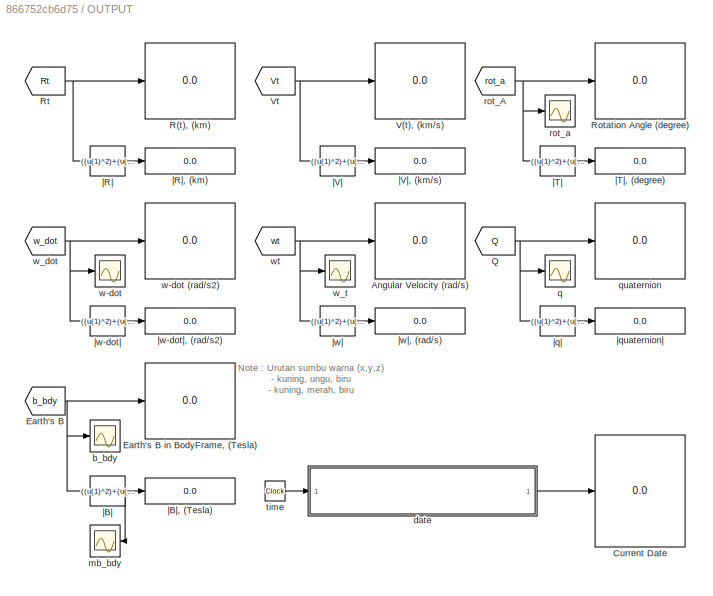
BLOCK [SubSystem] OUTPUT
  Ports = []
  RequestExecContextInheritance = off
BLOCK [Display] OUTPUT/Angular Velocity (rad//s)
  Decimation = 1
  Ports = [1]
BLOCK [Display] OUTPUT/Current Date
  Decimation = 1
  Format = long
  Ports = [1]
BLOCK [From] OUTPUT/Earth's B
  GotoTag = b_bdy
  TagVisibility = global
BLOCK [Display] OUTPUT/Earth's B in BodyFrame, (Tesla)
  Decimation = 1
  Ports = [1]
BLOCK [From] OUTPUT/Q
  GotoTag = Q
  TagVisibility = global
BLOCK [Display] OUTPUT/R(t), (km)
  Decimation = 1
  Ports = [1]
BLOCK [Display] OUTPUT/Rotation Angle (degree)
  Decimation = 1
  Ports = [1]
BLOCK [From] OUTPUT/Rt
  GotoTag = Rt
  TagVisibility = global
BLOCK [Display] OUTPUT/V(t), (km//s)
  Decimation = 1
  Ports = [1]
BLOCK [From] OUTPUT/Vt
  GotoTag = Vt
  TagVisibility = global
BLOCK [Scope] OUTPUT/b_bdy
  Floating = off
  LimitDataPoints = off
  NumInputPorts = 1
  Ports = [1]
  SaveName = ScopeData3
  YMax = 5e-05
  YMin = -3.5e-05
BLOCK [SubSystem] OUTPUT/date
  Ports = [1, 1]
  RequestExecContextInheritance = off
BLOCK [MATLABFcn] OUTPUT/date/Epoch to Seconds
  MATLABFcn = read_epochS(u(1))
  Output1D = off
  Ports = [1, 1]
BLOCK [Mux] OUTPUT/date/Mux
  DisplayOption = bar
  Inputs = 3
  Ports = [3, 1]
BLOCK [Mux] OUTPUT/date/Mux1
  DisplayOption = bar
  Inputs = 2
  Ports = [2, 1]
BLOCK [Mux] OUTPUT/date/Mux2
  DisplayOption = bar
  Inputs = 3
  Ports = [3, 1]
BLOCK [Mux] OUTPUT/date/Mux3
  DisplayOption = bar
  Inputs = 3
  Ports = [3, 1]
BLOCK [Sum] OUTPUT/date/Sum
  IconShape = round
  InputSameDT = off
  Inputs = |++
  OutDataTypeStr = Inherit: Inherit via internal rule
  Ports = [2, 1]
  SaturateOnIntegerOverflow = off
BLOCK [Outport] OUTPUT/date/c date
  IconDisplay = Port number
BLOCK [Display] OUTPUT/date/current time (s)
  Decimation = 1
  Format = long
  Ports = [1]
BLOCK [Fcn] OUTPUT/date/d
  Expr = u(3)
BLOCK [Goto] OUTPUT/date/date
  GotoTag = date
  TagVisibility = global
BLOCK [Display] OUTPUT/date/epoch (s)
  Decimation = 1
  Format = long
  Ports = [1]
BLOCK [From] OUTPUT/date/epoch time
  GotoTag = t
  TagVisibility = global
BLOCK [Fcn] OUTPUT/date/m
  Expr = u(2)
BLOCK [Inport] OUTPUT/date/s time
  IconDisplay = Port number
BLOCK [SubSystem] OUTPUT/date/s2hms
  ErrorFcn = Stateflow.Translate.translate
  PermitHierarchicalResolution = ExplicitOnly
  Ports = [1, 3]
  RequestExecContextInheritance = off
  SFBlockType = MATLAB Function
  TreatAsAtomicUnit = on
BLOCK [Demux] OUTPUT/date/s2hms/ Demux 
  Outputs = 1
  Ports = [1, 1]
BLOCK [S-Function] OUTPUT/date/s2hms/ SFunction 
  EnableBusSupport = on
  FunctionName = sf_sfun
  PortCounts = [1 4]
  Ports = [1, 4]
  Tag = Stateflow S-Function SatSIM_revJuli16_07 18
BLOCK [Terminator] OUTPUT/date/s2hms/ Terminator 
BLOCK [Outport] OUTPUT/date/s2hms/hour
  IconDisplay = Port number
BLOCK [Outport] OUTPUT/date/s2hms/min
  IconDisplay = Port number
  Port = 2
BLOCK [Outport] OUTPUT/date/s2hms/sec
  IconDisplay = Port number
  Port = 3
BLOCK [Inport] OUTPUT/date/s2hms/secs
  IconDisplay = Port number
BLOCK [Goto] OUTPUT/date/time
  GotoTag = time
  TagVisibility = global
BLOCK [MATLABFcn] OUTPUT/date/to corrent time
  MATLABFcn = sec_to_ymdhms2(u(1))
  Ports = [1, 1]
BLOCK [Fcn] OUTPUT/date/y
  Expr = u(1)
BLOCK [Scope] OUTPUT/mb_bdy
  Floating = off
  LimitDataPoints = off
  NumInputPorts = 1
  Ports = [1]
  SaveName = ScopeData4
  YMax = 4.1855e-05
  YMin = 4.177e-05
BLOCK [Scope] OUTPUT/q
  Floating = off
  LimitDataPoints = off
  NumInputPorts = 1
  Ports = [1]
  SaveName = ScopeData12
  YMax = 0.8
  YMin = -0.8
BLOCK [Display] OUTPUT/quaternion
  Decimation = 1
  Ports = [1]
BLOCK [From] OUTPUT/rot_A
  GotoTag = rot_a
  TagVisibility = global
BLOCK [Scope] OUTPUT/rot_a
  Floating = off
  LimitDataPoints = off
  NumInputPorts = 1
  Ports = [1]
  YMax = -27.5
  YMin = -72.5
BLOCK [Clock] OUTPUT/time
BLOCK [Scope] OUTPUT/w-dot
  Floating = off
  LimitDataPoints = off
  NumInputPorts = 1
  Ports = [1]
  SaveName = ScopeData13
  YMax = 5e-05
  YMin = -0.0006
BLOCK [Display] OUTPUT/w-dot (rad//s2)
  Decimation = 1
  Ports = [1]
BLOCK [From] OUTPUT/w_dot 
  GotoTag = w_dot
  TagVisibility = global
BLOCK [Scope] OUTPUT/w_t
  Floating = off
  LimitDataPoints = off
  NumInputPorts = 1
  Ports = [1]
  SaveName = ScopeData1
  YMax = 0.035
  YMin = -0.015
BLOCK [From] OUTPUT/wt
  GotoTag = wt
  TagVisibility = global
BLOCK [Fcn] OUTPUT/|B|
  Expr = ((u(1)^2)+(u(2)^2)+(u(3)^2))^0.5
BLOCK [Display] OUTPUT/|B|, (Tesla)
  Decimation = 1
  Ports = [1]
BLOCK [Fcn] OUTPUT/|R|
  Expr = ((u(1)^2)+(u(2)^2)+(u(3)^2))^0.5
BLOCK [Display] OUTPUT/|R|, (km) 
  Decimation = 1
  Ports = [1]
BLOCK [Fcn] OUTPUT/|T|
  Expr = ((u(1)^2)+(u(2)^2)+(u(3)^2))^0.5
BLOCK [Display] OUTPUT/|T|, (degree)
  Decimation = 1
  Ports = [1]
BLOCK [Fcn] OUTPUT/|V|
  Expr = ((u(1)^2)+(u(2)^2)+(u(3)^2))^0.5
BLOCK [Display] OUTPUT/|V|, (km//s)
  Decimation = 1
  Ports = [1]
BLOCK [Display] OUTPUT/|quaternion|
  Decimation = 1
  Ports = [1]
BLOCK [Fcn] OUTPUT/|q|
  Expr = ((u(1)^2)+(u(2)^2)+(u(3)^2))^0.5
BLOCK [Fcn] OUTPUT/|w-dot|
  Expr = ((u(1)^2)+(u(2)^2)+(u(3)^2))^0.5
BLOCK [Display] OUTPUT/|w-dot|, (rad//s2)
  Decimation = 1
  Ports = [1]
BLOCK [Fcn] OUTPUT/|w|
  Expr = ((u(1)^2)+(u(2)^2)+(u(3)^2))^0.5
BLOCK [Display] OUTPUT/|w|, (rad//s)
  Decimation = 1
  Ports = [1]
BLOCK [SubSystem] Satellite Parameter INPUT
  Ports = []
  RequestExecContextInheritance = off
BLOCK [Constant] Satellite Parameter INPUT/0
  Value = 0
BLOCK [Demux] Satellite Parameter INPUT/Demux
  DisplayOption = bar
  Outputs = 3
  Ports = [1, 3]
BLOCK [Goto] Satellite Parameter INPUT/I
  GotoTag = Im
  TagVisibility = global
BLOCK [Reference] Satellite Parameter INPUT/I   REF=aerolibutil/Create 3x3 Matrix
  Ports = [9, 1]
  SourceBlock = aerolibutil/Create 3x3 Matrix
  SourceType = Create 3x3 Matrix
BLOCK [ManualSwitch] Satellite Parameter INPUT/Im
BLOCK [Constant] Satellite Parameter INPUT/Initial Angular Velocity (rad//s)
  Value = [0.03 -0.02 0.01]
BLOCK [Constant] Satellite Parameter INPUT/Mass (kg)
  Value = 3.5
BLOCK [MATLABFcn] Satellite Parameter INPUT/Moment Inertia
  MATLABFcn = InertiaMoment3(u(1),u(2),u(3),u(4))
  Output1D = off
  Ports = [1, 1]
BLOCK [Display] Satellite Parameter INPUT/Moment Inertia [kg.km2]
  Decimation = 1
  Ports = [1]
BLOCK [Mux] Satellite Parameter INPUT/Mux
  DisplayOption = bar
  Ports = [4, 1]
BLOCK [Goto] Satellite Parameter INPUT/N
  GotoTag = N
  TagVisibility = global
BLOCK [Constant] Satellite Parameter INPUT/N-coil
  Value = [265 243 279]
BLOCK [Constant] Satellite Parameter INPUT/Orbital Parameter (e,i,O,w,n,M,E)
  Value = [0.0013 96.9980 144.8864 105.9830 14.7644 2.541966 254.1954]
  VectorParams1D = off
BLOCK [Display] Satellite Parameter INPUT/TAK benda in principle axis
  Decimation = 1
  Ports = [1]
BLOCK [Reference] Satellite Parameter INPUT/U11  REF=dspmtrx3/Submatrix
  ColEndIndex = 1
  ColEndMode = Last
  ColSpan = One column
  ColStartIndex = 1
  ColStartMode = First
  Ports = [1, 1]
  RowEndIndex = 1
  RowEndMode = Last
  RowSpan = One row
  RowStartIndex = 1
  RowStartMode = First
  SourceBlock = dspmtrx3/Submatrix
  SourceType = Submatrix
BLOCK [Reference] Satellite Parameter INPUT/U22  REF=dspmtrx3/Submatrix
  ColEndIndex = 1
  ColEndMode = Last
  ColSpan = One column
  ColStartIndex = 1
  ColStartMode = Middle
  Ports = [1, 1]
  RowEndIndex = 1
  RowEndMode = Last
  RowSpan = One row
  RowStartIndex = 1
  RowStartMode = Middle
  SourceBlock = dspmtrx3/Submatrix
  SourceType = Submatrix
BLOCK [Reference] Satellite Parameter INPUT/U33  REF=dspmtrx3/Submatrix
  ColEndIndex = 1
  ColEndMode = Last
  ColSpan = One column
  ColStartIndex = 1
  ColStartMode = Last
  Ports = [1, 1]
  RowEndIndex = 1
  RowEndMode = Last
  RowSpan = One row
  RowStartIndex = 1
  RowStartMode = Last
  SourceBlock = dspmtrx3/Submatrix
  SourceType = Submatrix
BLOCK [Constant] Satellite Parameter INPUT/convert to m
  Value = 10^-2
BLOCK [Goto] Satellite Parameter INPUT/dim
  GotoTag = dim
  TagVisibility = global
BLOCK [Constant] Satellite Parameter INPUT/dimention of satllite (p l t) cm
  Value = [13 13 30]
BLOCK [Goto] Satellite Parameter INPUT/epoch
  GotoTag = t
  TagVisibility = global
BLOCK [Constant] Satellite Parameter INPUT/epoch (s)
  Value = 16092.07183861
BLOCK [SubSystem] Satellite Parameter INPUT/initial r and v
  Ports = []
  RequestExecContextInheritance = off
BLOCK [Reference] Satellite Parameter INPUT/initial r and v/AC  REF=aerolibconvert2/Angle Conversion
  IU = deg
  OU = rad
  Ports = [1, 1]
  SourceBlock = aerolibconvert2/Angle Conversion
  SourceType = Angle Conversion
BLOCK [Reference] Satellite Parameter INPUT/initial r and v/AC   REF=aerolibconvert2/Angle Conversion
  IU = deg
  OU = rad
  Ports = [1, 1]
  SourceBlock = aerolibconvert2/Angle Conversion
  SourceType = Angle Conversion
BLOCK [Fcn] Satellite Parameter INPUT/initial r and v/O
  Expr = u(3)
BLOCK [Sum] Satellite Parameter INPUT/initial r and v/O+o
  InputSameDT = off
  OutDataTypeStr = Inherit: Inherit via internal rule
  Ports = [2, 1]
  SaturateOnIntegerOverflow = off
BLOCK [SubSystem] Satellite Parameter INPUT/initial r and v/Orbital Parameter to Initial Position&Velocity
  ErrorFcn = Stateflow.Translate.translate
  PermitHierarchicalResolution = ExplicitOnly
  Ports = [10, 2]
  RequestExecContextInheritance = off
  SFBlockType = MATLAB Function
  TreatAsAtomicUnit = on
BLOCK [Demux] Satellite Parameter INPUT/initial r and v/Orbital Parameter to Initial Position&Velocity/ Demux 
  Outputs = 1
  Ports = [1, 1]
BLOCK [S-Function] Satellite Parameter INPUT/initial r and v/Orbital Parameter to Initial Position&Velocity/ SFunction 
  EnableBusSupport = on
  FunctionName = sf_sfun
  PortCounts = [10 3]
  Ports = [10, 3]
  Tag = Stateflow S-Function SatSIM_revJuli16_07 4
BLOCK [Terminator] Satellite Parameter INPUT/initial r and v/Orbital Parameter to Initial Position&Velocity/ Terminator 
BLOCK [Inport] Satellite Parameter INPUT/initial r and v/Orbital Parameter to Initial Position&Velocity/O
  IconDisplay = Port number
  Port = 4
BLOCK [Inport] Satellite Parameter INPUT/initial r and v/Orbital Parameter to Initial Position&Velocity/argLat
  IconDisplay = Port number
  Port = 8
BLOCK [Inport] Satellite Parameter INPUT/initial r and v/Orbital Parameter to Initial Position&Velocity/e
  IconDisplay = Port number
  Port = 2
BLOCK [Inport] Satellite Parameter INPUT/initial r and v/Orbital Parameter to Initial Position&Velocity/i
  IconDisplay = Port number
  Port = 3
BLOCK [Inport] Satellite Parameter INPUT/initial r and v/Orbital Parameter to Initial Position&Velocity/lonPer
  IconDisplay = Port number
  Port = 9
BLOCK [Inport] Satellite Parameter INPUT/initial r and v/Orbital Parameter to Initial Position&Velocity/mu
  IconDisplay = Port number
  Port = 10
BLOCK [Inport] Satellite Parameter INPUT/initial r and v/Orbital Parameter to Initial Position&Velocity/nu
  IconDisplay = Port number
  Port = 6
BLOCK [Inport] Satellite Parameter INPUT/initial r and v/Orbital Parameter to Initial Position&Velocity/o
  IconDisplay = Port number
  Port = 5
BLOCK [Inport] Satellite Parameter INPUT/initial r and v/Orbital Parameter to Initial Position&Velocity/p
  IconDisplay = Port number
BLOCK [Outport] Satellite Parameter INPUT/initial r and v/Orbital Parameter to Initial Position&Velocity/r
  IconDisplay = Port number
BLOCK [Inport] Satellite Parameter INPUT/initial r and v/Orbital Parameter to Initial Position&Velocity/truLon
  IconDisplay = Port number
  Port = 7
BLOCK [Outport] Satellite Parameter INPUT/initial r and v/Orbital Parameter to Initial Position&Velocity/v
  IconDisplay = Port number
  Port = 2
BLOCK [Display] Satellite Parameter INPUT/initial r and v/Position (km)
  Decimation = 1
  Ports = [1]
BLOCK [Display] Satellite Parameter INPUT/initial r and v/Position (km) 
  Decimation = 1
  Ports = [1]
BLOCK [Goto] Satellite Parameter INPUT/initial r and v/Ro
  GotoTag = Ro
  TagVisibility = global
BLOCK [Sum] Satellite Parameter INPUT/initial r and v/Tet+o
  InputSameDT = off
  OutDataTypeStr = Inherit: Inherit via internal rule
  Ports = [2, 1]
  SaturateOnIntegerOverflow = off
BLOCK [From] Satellite Parameter INPUT/initial r and v/True Anomaly
  GotoTag = Tet
  TagVisibility = global
BLOCK [Display] Satellite Parameter INPUT/initial r and v/Velocity (km//s)
  Decimation = 1
  Ports = [1]
BLOCK [Display] Satellite Parameter INPUT/initial r and v/Velocity (km//s) 
  Decimation = 1
  Ports = [1]
BLOCK [Goto] Satellite Parameter INPUT/initial r and v/Vo
  GotoTag = Vo
  TagVisibility = global
BLOCK [Sum] Satellite Parameter INPUT/initial r and v/argLat+o
  InputSameDT = off
  OutDataTypeStr = Inherit: Inherit via internal rule
  Ports = [2, 1]
  SaturateOnIntegerOverflow = off
BLOCK [Fcn] Satellite Parameter INPUT/initial r and v/e
  Expr = u(1)
BLOCK [Fcn] Satellite Parameter INPUT/initial r and v/i
  Expr = u(2)
BLOCK [From] Satellite Parameter INPUT/initial r and v/mu
  GotoTag = u
  TagVisibility = global
BLOCK [Fcn] Satellite Parameter INPUT/initial r and v/o
  Expr = u(4)
BLOCK [From] Satellite Parameter INPUT/initial r and v/orbital parameter
  GotoTag = obt_par
  TagVisibility = global
BLOCK [From] Satellite Parameter INPUT/initial r and v/smlcrec
  GotoTag = p
  TagVisibility = global
BLOCK [Fcn] Satellite Parameter INPUT/initial r and v/|Ro|
  Expr = ((u(1)^2)+(u(2)^2)+(u(3)^2))^0.5
BLOCK [Fcn] Satellite Parameter INPUT/initial r and v/|Vo|
  Expr = ((u(1)^2)+(u(2)^2)+(u(3)^2))^0.5
BLOCK [Goto] Satellite Parameter INPUT/ms
  GotoTag = ms
  TagVisibility = global
BLOCK [Goto] Satellite Parameter INPUT/obt_par
  GotoTag = obt_par
  TagVisibility = global
BLOCK [SubSystem] Satellite Parameter INPUT/other parameter
  Ports = []
  RequestExecContextInheritance = off
BLOCK [Constant] Satellite Parameter INPUT/other parameter/Earth's Angular Velocity (rad//s)
  Value = 7.2921159 *10^-5
BLOCK [Constant] Satellite Parameter INPUT/other parameter/Earth's Mass (kg)
  Value = 5.98*10^24
BLOCK [Constant] Satellite Parameter INPUT/other parameter/Earth's Radius (km)
  Value = 6378.148
BLOCK [Goto] Satellite Parameter INPUT/other parameter/G
  GotoTag = G
  TagVisibility = global
BLOCK [Constant] Satellite Parameter INPUT/other parameter/G ([KN.km2//kg2)
  Value = 6.67*10^-20
BLOCK [Mux] Satellite Parameter INPUT/other parameter/Mux
  DisplayOption = bar
  Inputs = 2
  Ports = [2, 1]
BLOCK [Goto] Satellite Parameter INPUT/other parameter/Re
  GotoTag = Re
  TagVisibility = global
BLOCK [SubSystem] Satellite Parameter INPUT/other parameter/Semi Major Axis and Semilatus Rectum
  Ports = []
  RequestExecContextInheritance = off
BLOCK [Fcn] Satellite Parameter INPUT/other parameter/Semi Major Axis and Semilatus Rectum/E
  Expr = u(7)
BLOCK [Mux] Satellite Parameter INPUT/other parameter/Semi Major Axis and Semilatus Rectum/Mux
  DisplayOption = bar
  Inputs = 2
  Ports = [2, 1]
BLOCK [From] Satellite Parameter INPUT/other parameter/Semi Major Axis and Semilatus Rectum/Orbital Parameter
  GotoTag = obt_par
  TagVisibility = global
BLOCK [Goto] Satellite Parameter INPUT/other parameter/Semi Major Axis and Semilatus Rectum/T
  GotoTag = Tet
  TagVisibility = global
BLOCK [Display] Satellite Parameter INPUT/other parameter/Semi Major Axis and Semilatus Rectum/T (deg)
  Decimation = 1
  Ports = [1]
BLOCK [SubSystem] Satellite Parameter INPUT/other parameter/Semi Major Axis and Semilatus Rectum/True Anomaly
  Ports = [2, 1]
  RequestExecContextInheritance = off
BLOCK [Fcn] Satellite Parameter INPUT/other parameter/Semi Major Axis and Semilatus Rectum/True Anomaly/1
  Expr = u(1)
BLOCK [Product] Satellite Parameter INPUT/other parameter/Semi Major Axis and Semilatus Rectum/True Anomaly/1+e//1-e
  InputSameDT = off
  Inputs = */
  OutDataTypeStr = Inherit: Inherit via internal rule
  Ports = [2, 1]
  RndMeth = Floor
  SaturateOnIntegerOverflow = off
BLOCK [Fcn] Satellite Parameter INPUT/other parameter/Semi Major Axis and Semilatus Rectum/True Anomaly/2
  Expr = u(2)
BLOCK [Inport] Satellite Parameter INPUT/other parameter/Semi Major Axis and Semilatus Rectum/True Anomaly/E
  IconDisplay = Port number
  Port = 2
BLOCK [Product] Satellite Parameter INPUT/other parameter/Semi Major Axis and Semilatus Rectum/True Anomaly/E//2
  InputSameDT = off
  Inputs = */
  OutDataTypeStr = Inherit: Inherit via internal rule
  Ports = [2, 1]
  RndMeth = Floor
  SaturateOnIntegerOverflow = off
BLOCK [Sqrt] Satellite Parameter INPUT/other parameter/Semi Major Axis and Semilatus Rectum/True Anomaly/Sqrt
BLOCK [Sum] Satellite Parameter INPUT/other parameter/Semi Major Axis and Semilatus Rectum/True Anomaly/Sum
  IconShape = round
  InputSameDT = off
  Inputs = |++
  OutDataTypeStr = Inherit: Inherit via internal rule
  Ports = [2, 1]
  SaturateOnIntegerOverflow = off
BLOCK [Sum] Satellite Parameter INPUT/other parameter/Semi Major Axis and Semilatus Rectum/True Anomaly/Sum1
  IconShape = round
  InputSameDT = off
  Inputs = |+-
  OutDataTypeStr = Inherit: Inherit via internal rule
  Ports = [2, 1]
  SaturateOnIntegerOverflow = off
BLOCK [Outport] Satellite Parameter INPUT/other parameter/Semi Major Axis and Semilatus Rectum/True Anomaly/T
  IconDisplay = Port number
BLOCK [Trigonometry] Satellite Parameter INPUT/other parameter/Semi Major Axis and Semilatus Rectum/True Anomaly/atan
  Operator = atan
  Ports = [1, 1]
BLOCK [Constant] Satellite Parameter INPUT/other parameter/Semi Major Axis and Semilatus Rectum/True Anomaly/c
  Value = [1 2]
BLOCK [Reference] Satellite Parameter INPUT/other parameter/Semi Major Axis and Semilatus Rectum/True Anomaly/d2r  REF=aerolibconvert2/Angle Conversion
  IU = deg
  OU = rad
  Ports = [1, 1]
  SourceBlock = aerolibconvert2/Angle Conversion
  SourceType = Angle Conversion
BLOCK [Inport] Satellite Parameter INPUT/other parameter/Semi Major Axis and Semilatus Rectum/True Anomaly/e
  IconDisplay = Port number
BLOCK [Reference] Satellite Parameter INPUT/other parameter/Semi Major Axis and Semilatus Rectum/True Anomaly/r2d  REF=aerolibconvert2/Angle Conversion
  IU = rad
  OU = deg
  Ports = [1, 1]
  SourceBlock = aerolibconvert2/Angle Conversion
  SourceType = Angle Conversion
BLOCK [Trigonometry] Satellite Parameter INPUT/other parameter/Semi Major Axis and Semilatus Rectum/True Anomaly/tan
  Operator = tan
  Ports = [1, 1]
BLOCK [Product] Satellite Parameter INPUT/other parameter/Semi Major Axis and Semilatus Rectum/True Anomaly/x
  InputSameDT = off
  OutDataTypeStr = Inherit: Inherit via internal rule
  Ports = [2, 1]
  RndMeth = Floor
  SaturateOnIntegerOverflow = off
BLOCK [Product] Satellite Parameter INPUT/other parameter/Semi Major Axis and Semilatus Rectum/True Anomaly/x 
  InputSameDT = off
  OutDataTypeStr = Inherit: Inherit via internal rule
  Ports = [2, 1]
  RndMeth = Floor
  SaturateOnIntegerOverflow = off
BLOCK [Goto] Satellite Parameter INPUT/other parameter/Semi Major Axis and Semilatus Rectum/a
  GotoTag = a
  TagVisibility = global
BLOCK [Display] Satellite Parameter INPUT/other parameter/Semi Major Axis and Semilatus Rectum/a and p
  Decimation = 1
  Format = long
  Ports = [1]
BLOCK [SubSystem] Satellite Parameter INPUT/other parameter/Semi Major Axis and Semilatus Rectum/a n p
  Ports = [3, 2]
  RequestExecContextInheritance = off
BLOCK [Fcn] Satellite Parameter INPUT/other parameter/Semi Major Axis and Semilatus Rectum/a n p/1
  Expr = u(1)
BLOCK [Product] Satellite Parameter INPUT/other parameter/Semi Major Axis and Semilatus Rectum/a n p/1//c
  InputSameDT = off
  Inputs = */
  OutDataTypeStr = Inherit: Inherit via internal rule
  Ports = [2, 1]
  RndMeth = Floor
  SaturateOnIntegerOverflow = off
BLOCK [Product] Satellite Parameter INPUT/other parameter/Semi Major Axis and Semilatus Rectum/a n p/1//d
  InputSameDT = off
  Inputs = */
  OutDataTypeStr = Inherit: Inherit via internal rule
  Ports = [2, 1]
  RndMeth = Floor
  SaturateOnIntegerOverflow = off
BLOCK [Fcn] Satellite Parameter INPUT/other parameter/Semi Major Axis and Semilatus Rectum/a n p/2
  Expr = u(2)
BLOCK [Sum] Satellite Parameter INPUT/other parameter/Semi Major Axis and Semilatus Rectum/a n p/Sum
  IconShape = round
  InputSameDT = off
  Inputs = |+-
  OutDataTypeStr = Inherit: Inherit via internal rule
  Ports = [2, 1]
  SaturateOnIntegerOverflow = off
BLOCK [Outport] Satellite Parameter INPUT/other parameter/Semi Major Axis and Semilatus Rectum/a n p/a
  IconDisplay = Port number
BLOCK [Constant] Satellite Parameter INPUT/other parameter/Semi Major Axis and Semilatus Rectum/a n p/c
  Value = [1 2]
BLOCK [Inport] Satellite Parameter INPUT/other parameter/Semi Major Axis and Semilatus Rectum/a n p/e
  IconDisplay = Port number
BLOCK [Inport] Satellite Parameter INPUT/other parameter/Semi Major Axis and Semilatus Rectum/a n p/n
  IconDisplay = Port number
  Port = 2
BLOCK [Outport] Satellite Parameter INPUT/other parameter/Semi Major Axis and Semilatus Rectum/a n p/p
  IconDisplay = Port number
  Port = 2
BLOCK [Constant] Satellite Parameter INPUT/other parameter/Semi Major Axis and Semilatus Rectum/a n p/pi
  Value = 1*pi
BLOCK [Math] Satellite Parameter INPUT/other parameter/Semi Major Axis and Semilatus Rectum/a n p/sqr
  Operator = square
  Ports = [1, 1]
BLOCK [Math] Satellite Parameter INPUT/other parameter/Semi Major Axis and Semilatus Rectum/a n p/sqr 
  Operator = square
  Ports = [1, 1]
BLOCK [Fcn] Satellite Parameter INPUT/other parameter/Semi Major Axis and Semilatus Rectum/a n p/sqrt3
  Expr = u(1)^(1/3)
BLOCK [Constant] Satellite Parameter INPUT/other parameter/Semi Major Axis and Semilatus Rectum/a n p/t convert
  Value = 24*3600
BLOCK [Inport] Satellite Parameter INPUT/other parameter/Semi Major Axis and Semilatus Rectum/a n p/u
  IconDisplay = Port number
  Port = 3
BLOCK [Product] Satellite Parameter INPUT/other parameter/Semi Major Axis and Semilatus Rectum/a n p/x
  InputSameDT = off
  Inputs = 3
  OutDataTypeStr = Inherit: Inherit via internal rule
  Ports = [3, 1]
  RndMeth = Floor
  SaturateOnIntegerOverflow = off
BLOCK [Product] Satellite Parameter INPUT/other parameter/Semi Major Axis and Semilatus Rectum/a n p/x 
  InputSameDT = off
  OutDataTypeStr = Inherit: Inherit via internal rule
  Ports = [2, 1]
  RndMeth = Floor
  SaturateOnIntegerOverflow = off
BLOCK [Goto] Satellite Parameter INPUT/other parameter/Semi Major Axis and Semilatus Rectum/coef p
  GotoTag = p
  TagVisibility = global
BLOCK [Fcn] Satellite Parameter INPUT/other parameter/Semi Major Axis and Semilatus Rectum/e
  Expr = u(1)
BLOCK [From] Satellite Parameter INPUT/other parameter/Semi Major Axis and Semilatus Rectum/mu 
  GotoTag = u
  TagVisibility = global
BLOCK [Fcn] Satellite Parameter INPUT/other parameter/Semi Major Axis and Semilatus Rectum/n
  Expr = u(5)
BLOCK [Goto] Satellite Parameter INPUT/other parameter/Torb
  GotoTag = Torb
  TagVisibility = global
BLOCK [Reference] Satellite Parameter INPUT/other parameter/VC  REF=aerolibconvert2/Angular Velocity
Conversion
  IU = rad/s
  OU = deg/s
  Ports = [1, 1]
  SourceBlock = aerolibconvert2/Angular Velocity\nConversion
  SourceType = Angular Velocity Conversion
BLOCK [From] Satellite Parameter INPUT/other parameter/a
  GotoTag = a
  TagVisibility = global
BLOCK [Goto] Satellite Parameter INPUT/other parameter/mp
  GotoTag = mp
  TagVisibility = global
BLOCK [Product] Satellite Parameter INPUT/other parameter/mu
  InputSameDT = off
  OutDataTypeStr = Inherit: Inherit via internal rule
  Ports = [2, 1]
  RndMeth = Floor
  SaturateOnIntegerOverflow = off
BLOCK [Fcn] Satellite Parameter INPUT/other parameter/periode
  Expr = 2*pi*(((u(1)^3)/u(2))^0.5)
BLOCK [Display] Satellite Parameter INPUT/other parameter/periode, (s)
  Decimation = 1
  Ports = [1]
BLOCK [From] Satellite Parameter INPUT/other parameter/u
  GotoTag = u
  TagVisibility = global
BLOCK [Goto] Satellite Parameter INPUT/other parameter/u (kN.km2//kg)
  GotoTag = u
  TagVisibility = global
BLOCK [Goto] Satellite Parameter INPUT/other parameter/w
  GotoTag = wE
  TagVisibility = global
BLOCK [Goto] Satellite Parameter INPUT/w0
  GotoTag = w0
  TagVisibility = global
BLOCK [Product] Satellite Parameter INPUT/x
  InputSameDT = off
  OutDataTypeStr = Inherit: Inherit via internal rule
  Ports = [2, 1]
  RndMeth = Floor
  SaturateOnIntegerOverflow = off
BLOCK [SubSystem] Sensor
  Ports = []
  RequestExecContextInheritance = off
BLOCK [Goto] Sensor/Earth Magnetic Field (T) in Body Frame
  GotoTag = b_bdy
  TagVisibility = global
BLOCK [Display] Sensor/Earth Magnetic Field (T) in ECI
  Decimation = 1
  Format = long
  Ports = [1]
BLOCK [From] Sensor/RIB
  GotoTag = RIB
  TagVisibility = global
BLOCK [Reference] Sensor/RIB^-1  REF=aerolibutil/Invert 
3x3 Matrix
  Ports = [1, 1]
  SourceBlock = aerolibutil/Invert \n3x3 Matrix
  SourceType = Invert 3x3 Matrix
BLOCK [Product] Sensor/Transform Inertia to Body
  InputSameDT = off
  Multiplication = Matrix(*)
  OutDataTypeStr = Inherit: Inherit via internal rule
  Ports = [2, 1]
  RndMeth = Floor
  SaturateOnIntegerOverflow = off
BLOCK [From] Sensor/b_eci
  GotoTag = b_eci
  TagVisibility = global
BLOCK [Constant] Sensor/nT to T
  Value = 1/10^9
BLOCK [Product] Sensor/x
  InputSameDT = off
  OutDataTypeStr = Inherit: Inherit via internal rule
  Ports = [2, 1]
  RndMeth = Floor
  SaturateOnIntegerOverflow = off
BLOCK [SubSystem] Visualization
  Commented = on
  Ports = []
  RequestExecContextInheritance = off
BLOCK [Reference] Visualization/6DoF Animation  REF=aerolibanim/6DoF Animation
  Ports = [2]
  SourceBlock = aerolibanim/6DoF Animation
  SourceType = 6DoF_Animation
  u1 = [-15000 15000 -15000 15000 -15000 15000]
  u2 = 0.1
  u3 = 2000
  u4 = [0 0 0]
  u5 = Fixed position
  u6 = [60000 120000 60000]
  u7 = 10
  u8 = off
BLOCK [From] Visualization/Rotation Angle, degree
  GotoTag = rot_a
  TagVisibility = global
BLOCK [From] Visualization/Vector R(t), km
  GotoTag = Rt
  TagVisibility = global
BLOCK [SubSystem] dynamic inertial
  Ports = []
  RequestExecContextInheritance = off
BLOCK [Reference] dynamic inertial/Angle Conversion  REF=aerolibconvert2/Angle Conversion
  IU = rad
  OU = deg
  Ports = [1, 1]
  SourceBlock = aerolibconvert2/Angle Conversion
  SourceType = Angle Conversion
BLOCK [SubSystem] dynamic inertial/Attitude Dynamic
  Ports = [0, 1]
  RequestExecContextInheritance = off
BLOCK [Product] dynamic inertial/Attitude Dynamic/(wx(Iw)+t)*I^-1
  InputSameDT = off
  Multiplication = Matrix(*)
  OutDataTypeStr = Inherit: Inherit via internal rule
  Ports = [2, 1]
  RndMeth = Floor
  SaturateOnIntegerOverflow = off
BLOCK [Sum] dynamic inertial/Attitude Dynamic/+
  InputSameDT = off
  Inputs = +++
  OutDataTypeStr = Inherit: Inherit via internal rule
  Ports = [3, 1]
  SaturateOnIntegerOverflow = off
BLOCK [From] dynamic inertial/Attitude Dynamic/I
  GotoTag = Im
  TagVisibility = global
BLOCK [Product] dynamic inertial/Attitude Dynamic/I.Wt
  InputSameDT = off
  Multiplication = Matrix(*)
  OutDataTypeStr = Inherit: Inherit via internal rule
  Ports = [2, 1]
  RndMeth = Floor
  SaturateOnIntegerOverflow = off
BLOCK [Reference] dynamic inertial/Attitude Dynamic/Wt x (I.Wt)  REF=aerolibutil/3x3 Cross Product
  Ports = [2, 1]
  SourceBlock = aerolibutil/3x3 Cross Product
  SourceType = CrossProduct
BLOCK [Constant] dynamic inertial/Attitude Dynamic/disturbance
  Value = [0.0 0.0 0.0]
BLOCK [Reference] dynamic inertial/Attitude Dynamic/inverse(I)  REF=aerolibutil/Invert 
3x3 Matrix
  Ports = [1, 1]
  SourceBlock = aerolibutil/Invert \n3x3 Matrix
  SourceType = Invert 3x3 Matrix
BLOCK [From] dynamic inertial/Attitude Dynamic/magneto-torquer
  GotoTag = Tm
  TagVisibility = global
BLOCK [Display] dynamic inertial/Attitude Dynamic/torque (Nm)
  Decimation = 1
  Ports = [1]
BLOCK [Goto] dynamic inertial/Attitude Dynamic/w
  GotoTag = wt
  TagVisibility = global
BLOCK [Integrator] dynamic inertial/Attitude Dynamic/w-dot
  InitialConditionSource = external
  Ports = [2, 1]
BLOCK [Goto] dynamic inertial/Attitude Dynamic/w-dot 
  GotoTag = w_dot
  TagVisibility = global
BLOCK [Display] dynamic inertial/Attitude Dynamic/w-dot (rad//s2)
  Decimation = 1
  Ports = [1]
BLOCK [From] dynamic inertial/Attitude Dynamic/w0
  GotoTag = w0
  TagVisibility = global
BLOCK [Math] dynamic inertial/Attitude Dynamic/w^t
  Operator = transpose
  Ports = [1, 1]
BLOCK [Math] dynamic inertial/Attitude Dynamic/w^t 
  Operator = transpose
  Ports = [1, 1]
BLOCK [Outport] dynamic inertial/Attitude Dynamic/wt
  IconDisplay = Port number
BLOCK [Display] dynamic inertial/Attitude Dynamic/wt (rad//s)
  Decimation = 1
  Ports = [1]
BLOCK [Display] dynamic inertial/DCM RIB
  Decimation = 1
  Ports = [1]
BLOCK [SubSystem] dynamic inertial/DCM to Euler Parameter
  ErrorFcn = Stateflow.Translate.translate
  PermitHierarchicalResolution = ExplicitOnly
  Ports = [1, 1]
  RequestExecContextInheritance = off
  SFBlockType = MATLAB Function
  TreatAsAtomicUnit = on
BLOCK [Demux] dynamic inertial/DCM to Euler Parameter/ Demux 
  Outputs = 1
  Ports = [1, 1]
BLOCK [S-Function] dynamic inertial/DCM to Euler Parameter/ SFunction 
  EnableBusSupport = on
  FunctionName = sf_sfun
  PortCounts = [1 2]
  Ports = [1, 2]
  Tag = Stateflow S-Function SatSIM_revJuli16_07 7
BLOCK [Terminator] dynamic inertial/DCM to Euler Parameter/ Terminator 
BLOCK [Outport] dynamic inertial/DCM to Euler Parameter/B
  IconDisplay = Port number
BLOCK [Inport] dynamic inertial/DCM to Euler Parameter/DCM
  IconDisplay = Port number
BLOCK [Demux] dynamic inertial/Demux3
  DisplayOption = bar
  Outputs = 3
  Ports = [1, 3]
BLOCK [Goto] dynamic inertial/Euler Par
  GotoTag = E_par
  TagVisibility = global
BLOCK [Display] dynamic inertial/Euler Parameter
  Decimation = 1
  Ports = [1]
BLOCK [Mux] dynamic inertial/Mux1
  DisplayOption = bar
  Inputs = 3
  Ports = [3, 1]
BLOCK [Reference] dynamic inertial/Quaternions to Rotation Angles  REF=aerolibtransform2/Quaternions to Rotation Angles
  AttributesFormatString = Rotation Order: %<rotationOrder>
  Ports = [1, 1]
  SourceBlock = aerolibtransform2/Quaternions to Rotation Angles
  SourceType = Quat2Ang
  rotationOrder = ZYX
BLOCK [Goto] dynamic inertial/RIB, Body to Inertial
  GotoTag = RIB
  TagVisibility = global
BLOCK [Goto] dynamic inertial/Rotation Angle
  GotoTag = rot_a
  TagVisibility = global
BLOCK [Display] dynamic inertial/Rotation Angle (degree)
  Decimation = 1
  Ports = [1]
BLOCK [Reference] dynamic inertial/Rotation Angles to Direction Cosine Matrix  REF=aerolibtransform2/Rotation Angles to
Direction Cosine Matrix
  AttributesFormatString = Rotation Order: %<rotationOrder>
  Ports = [1, 1]
  SourceBlock = aerolibtransform2/Rotation Angles to\nDirection Cosine Matrix
  SourceType = Ang2DCM
  rotationOrder = ZYX
BLOCK [SubSystem] dynamic inertial/w(t) to Quaternion
  Ports = [1, 1]
  RequestExecContextInheritance = off
BLOCK [Constant] dynamic inertial/w(t) to Quaternion/1//2
  Value = 1/2
BLOCK [Reference] dynamic inertial/w(t) to Quaternion/Angle Conversion  REF=aerolibconvert2/Angle Conversion
  IU = deg
  OU = rad
  Ports = [1, 1]
  SourceBlock = aerolibconvert2/Angle Conversion
  SourceType = Angle Conversion
BLOCK [BusCreator] dynamic inertial/w(t) to Quaternion/Bus Creator
  DisplayOption = bar
  Ports = [4, 1]
BLOCK [BusSelector] dynamic inertial/w(t) to Quaternion/Bus Selector
  OutputSignals = signal4,signal1,signal2,signal3
  Ports = [1, 4]
BLOCK [BusSelector] dynamic inertial/w(t) to Quaternion/Bus Selector1
  OutputSignals = signal4,signal1,signal2,signal3
  Ports = [1, 4]
BLOCK [Demux] dynamic inertial/w(t) to Quaternion/Demux
  DisplayOption = bar
  Ports = [1, 4]
BLOCK [Demux] dynamic inertial/w(t) to Quaternion/Demux1
  DisplayOption = bar
  Ports = [1, 4]
BLOCK [Mux] dynamic inertial/w(t) to Quaternion/Mux
  DisplayOption = bar
  Ports = [4, 1]
BLOCK [Goto] dynamic inertial/w(t) to Quaternion/Q
  GotoTag = Q
  TagVisibility = global
BLOCK [Reference] dynamic inertial/w(t) to Quaternion/Rotation Angles to Quaternions  REF=aerolibtransform2/Rotation Angles to Quaternions
  AttributesFormatString = Rotation Order: %<rotationOrder>
  Ports = [1, 1]
  SourceBlock = aerolibtransform2/Rotation Angles to Quaternions
  SourceType = Ang2Quat
  rotationOrder = ZYX
BLOCK [Display] dynamic inertial/w(t) to Quaternion/cek quaternion
  Decimation = 1
  Ports = [1]
BLOCK [Constant] dynamic inertial/w(t) to Quaternion/initial euler angle roll,picth,yaw
  Value = [0 0 0]
BLOCK [Outport] dynamic inertial/w(t) to Quaternion/q
  IconDisplay = Port number
BLOCK [Display] dynamic inertial/w(t) to Quaternion/q-do
  Decimation = 1
  Ports = [1]
BLOCK [Product] dynamic inertial/w(t) to Quaternion/q.w
  InputSameDT = off
  Multiplication = Matrix(*)
  OutDataTypeStr = Inherit: Inherit via internal rule
  Ports = [2, 1]
  RndMeth = Floor
  SaturateOnIntegerOverflow = off
BLOCK [Display] dynamic inertial/w(t) to Quaternion/q0
  Decimation = 1
  Ports = [1]
BLOCK [Integrator] dynamic inertial/w(t) to Quaternion/q0-dot
  InitialConditionSource = external
  Ports = [2, 1]
BLOCK [Integrator] dynamic inertial/w(t) to Quaternion/q1-dot
  InitialConditionSource = external
  Ports = [2, 1]
BLOCK [Integrator] dynamic inertial/w(t) to Quaternion/q2-dot
  InitialConditionSource = external
  Ports = [2, 1]
BLOCK [Integrator] dynamic inertial/w(t) to Quaternion/q3-dot
  InitialConditionSource = external
  Ports = [2, 1]
BLOCK [Display] dynamic inertial/w(t) to Quaternion/quaternion
  Decimation = 1
  Ports = [1]
BLOCK [SubSystem] dynamic inertial/w(t) to Quaternion/quaternion derivative
  ErrorFcn = Stateflow.Translate.translate
  PermitHierarchicalResolution = ExplicitOnly
  Ports = [4, 1]
  RequestExecContextInheritance = off
  SFBlockType = MATLAB Function
  TreatAsAtomicUnit = on
BLOCK [Demux] dynamic inertial/w(t) to Quaternion/quaternion derivative/ Demux 
  Outputs = 1
  Ports = [1, 1]
BLOCK [S-Function] dynamic inertial/w(t) to Quaternion/quaternion derivative/ SFunction 
  EnableBusSupport = on
  FunctionName = sf_sfun
  PortCounts = [4 2]
  Ports = [4, 2]
  Tag = Stateflow S-Function SatSIM_revJuli16_07 21
BLOCK [Terminator] dynamic inertial/w(t) to Quaternion/quaternion derivative/ Terminator 
BLOCK [Inport] dynamic inertial/w(t) to Quaternion/quaternion derivative/q0
  IconDisplay = Port number
BLOCK [Inport] dynamic inertial/w(t) to Quaternion/quaternion derivative/q1
  IconDisplay = Port number
  Port = 2
BLOCK [Inport] dynamic inertial/w(t) to Quaternion/quaternion derivative/q2
  IconDisplay = Port number
  Port = 3
BLOCK [Inport] dynamic inertial/w(t) to Quaternion/quaternion derivative/q3
  IconDisplay = Port number
  Port = 4
BLOCK [Outport] dynamic inertial/w(t) to Quaternion/quaternion derivative/qdot
  IconDisplay = Port number
BLOCK [Inport] dynamic inertial/w(t) to Quaternion/wt
  IconDisplay = Port number
BLOCK [Product] dynamic inertial/w(t) to Quaternion/x
  InputSameDT = off
  OutDataTypeStr = Inherit: Inherit via internal rule
  Ports = [2, 1]
  RndMeth = Floor
  SaturateOnIntegerOverflow = off
BLOCK [SubSystem] dynamic orbital
  Ports = []
  RequestExecContextInheritance = off
BLOCK [Reference] dynamic orbital/AC  REF=aerolibconvert2/Angle Conversion
  IU = rad
  OU = deg
  Ports = [1, 1]
  SourceBlock = aerolibconvert2/Angle Conversion
  SourceType = Angle Conversion
BLOCK [Reference] dynamic orbital/AC   REF=aerolibconvert2/Angle Conversion
  IU = rad
  OU = deg
  Ports = [1, 1]
  SourceBlock = aerolibconvert2/Angle Conversion
  SourceType = Angle Conversion
BLOCK [Reference] dynamic orbital/Angle Conversion  REF=aerolibconvert2/Angle Conversion
  IU = rad
  OU = deg
  Ports = [1, 1]
  SourceBlock = aerolibconvert2/Angle Conversion
  SourceType = Angle Conversion
BLOCK [Display] dynamic orbital/DCM ROB, Body to Orbital
  Decimation = 1
  Ports = [1]
BLOCK [MATLABFcn] dynamic orbital/DCM ROI Inertial To Orbital
  MATLABFcn = DCM_ROI(u(1),u(2),u(3))
  Output1D = off
  Ports = [1, 1]
BLOCK [Display] dynamic orbital/DCM ROI, Inertial to Orbital
  Decimation = 1
  Ports = [1]
BLOCK [SubSystem] dynamic orbital/DCM to Euler Parameter
  ErrorFcn = Stateflow.Translate.translate
  PermitHierarchicalResolution = ExplicitOnly
  Ports = [1, 1]
  RequestExecContextInheritance = off
  SFBlockType = MATLAB Function
  TreatAsAtomicUnit = on
BLOCK [Demux] dynamic orbital/DCM to Euler Parameter/ Demux 
  Outputs = 1
  Ports = [1, 1]
BLOCK [S-Function] dynamic orbital/DCM to Euler Parameter/ SFunction 
  EnableBusSupport = on
  FunctionName = sf_sfun
  PortCounts = [1 2]
  Ports = [1, 2]
  Tag = Stateflow S-Function SatSIM_revJuli16_07 3
BLOCK [Terminator] dynamic orbital/DCM to Euler Parameter/ Terminator 
BLOCK [Outport] dynamic orbital/DCM to Euler Parameter/B
  IconDisplay = Port number
BLOCK [Inport] dynamic orbital/DCM to Euler Parameter/DCM
  IconDisplay = Port number
BLOCK [Demux] dynamic orbital/Demux
  DisplayOption = bar
  Ports = [1, 4]
BLOCK [Goto] dynamic orbital/Euler ParO
  GotoTag = E_parO
  TagVisibility = global
BLOCK [Display] dynamic orbital/Euler Parameter
  Decimation = 1
  Ports = [1]
BLOCK [SubSystem] dynamic orbital/Eulr Par to Quaternion
  ErrorFcn = Stateflow.Translate.translate
  PermitHierarchicalResolution = ExplicitOnly
  Ports = [4, 1]
  RequestExecContextInheritance = off
  SFBlockType = MATLAB Function
  TreatAsAtomicUnit = on
BLOCK [Demux] dynamic orbital/Eulr Par to Quaternion/ Demux 
  Outputs = 1
  Ports = [1, 1]
BLOCK [S-Function] dynamic orbital/Eulr Par to Quaternion/ SFunction 
  EnableBusSupport = on
  FunctionName = sf_sfun
  PortCounts = [4 2]
  Ports = [4, 2]
  Tag = Stateflow S-Function SatSIM_revJuli16_07 9
BLOCK [Terminator] dynamic orbital/Eulr Par to Quaternion/ Terminator 
BLOCK [Outport] dynamic orbital/Eulr Par to Quaternion/Q
  IconDisplay = Port number
BLOCK [Inport] dynamic orbital/Eulr Par to Quaternion/a1
  IconDisplay = Port number
  Port = 2
BLOCK [Inport] dynamic orbital/Eulr Par to Quaternion/a2
  IconDisplay = Port number
  Port = 3
BLOCK [Inport] dynamic orbital/Eulr Par to Quaternion/a3
  IconDisplay = Port number
  Port = 4
BLOCK [Inport] dynamic orbital/Eulr Par to Quaternion/teta
  IconDisplay = Port number
BLOCK [Mux] dynamic orbital/Mux
  DisplayOption = bar
  Inputs = 3
  Ports = [3, 1]
BLOCK [Fcn] dynamic orbital/O
  Expr = u(4)
BLOCK [From] dynamic orbital/Orbit Par
  GotoTag = obt_pt
  TagVisibility = global
BLOCK [Goto] dynamic orbital/Q
  GotoTag = QO
  TagVisibility = global
BLOCK [Reference] dynamic orbital/Quaternions to Rotation Angles  REF=aerolibtransform2/Quaternions to Rotation Angles
  AttributesFormatString = Rotation Order: %<rotationOrder>
  Ports = [1, 1]
  SourceBlock = aerolibtransform2/Quaternions to Rotation Angles
  SourceType = Quat2Ang
  rotationOrder = ZYX
BLOCK [From] dynamic orbital/RIB
  GotoTag = RIB
  TagVisibility = global
BLOCK [Product] dynamic orbital/RIB*ROI^-1
  InputSameDT = off
  OutDataTypeStr = Inherit: Inherit via internal rule
  Ports = [2, 1]
  RndMeth = Floor
  SaturateOnIntegerOverflow = off
BLOCK [Goto] dynamic orbital/ROB
  GotoTag = ROB
  TagVisibility = global
BLOCK [Goto] dynamic orbital/ROI
  GotoTag = ROI
  TagVisibility = global
BLOCK [Goto] dynamic orbital/Rotation Angle
  GotoTag = rot_aO
  TagVisibility = global
BLOCK [Display] dynamic orbital/Rotation Angle (degree)
  Decimation = 1
  Ports = [1]
BLOCK [Fcn] dynamic orbital/argLat
  Expr = u(8)
BLOCK [Fcn] dynamic orbital/i
  Expr = u(3)
BLOCK [Display] dynamic orbital/quaternion
  Decimation = 1
  Ports = [1]
BLOCK [SubSystem] orbit par(t)
  Ports = []
  RequestExecContextInheritance = off
BLOCK [Mux] orbit par(t)/Mux
  DisplayOption = bar
  Inputs = 10
  Ports = [10, 1]
BLOCK [Display] orbit par(t)/Orbital Parameter (t)
  Decimation = 1
  Ports = [1]
BLOCK [Goto] orbit par(t)/Orbital Paratmeter
  GotoTag = obt_pt
  TagVisibility = global
BLOCK [From] orbit par(t)/R(t)
  GotoTag = Rt
  TagVisibility = global
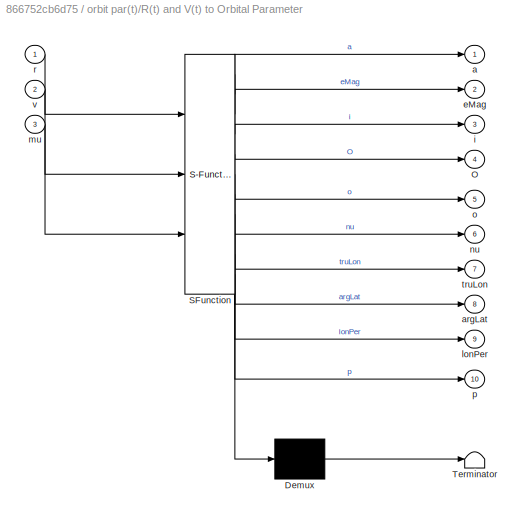
BLOCK [SubSystem] orbit par(t)/R(t) and V(t) to Orbital Parameter
  ErrorFcn = Stateflow.Translate.translate
  PermitHierarchicalResolution = ExplicitOnly
  Ports = [3, 10]
  RequestExecContextInheritance = off
  SFBlockType = MATLAB Function
  TreatAsAtomicUnit = on
BLOCK [Demux] orbit par(t)/R(t) and V(t) to Orbital Parameter/ Demux 
  Outputs = 1
  Ports = [1, 1]
BLOCK [S-Function] orbit par(t)/R(t) and V(t) to Orbital Parameter/ SFunction 
  EnableBusSupport = on
  FunctionName = sf_sfun
  PortCounts = [3 11]
  Ports = [3, 11]
  Tag = Stateflow S-Function SatSIM_revJuli16_07 8
BLOCK [Terminator] orbit par(t)/R(t) and V(t) to Orbital Parameter/ Terminator 
BLOCK [Outport] orbit par(t)/R(t) and V(t) to Orbital Parameter/O
  IconDisplay = Port number
  Port = 4
BLOCK [Outport] orbit par(t)/R(t) and V(t) to Orbital Parameter/a
  IconDisplay = Port number
BLOCK [Outport] orbit par(t)/R(t) and V(t) to Orbital Parameter/argLat
  IconDisplay = Port number
  Port = 8
BLOCK [Outport] orbit par(t)/R(t) and V(t) to Orbital Parameter/eMag
  IconDisplay = Port number
  Port = 2
BLOCK [Outport] orbit par(t)/R(t) and V(t) to Orbital Parameter/i
  IconDisplay = Port number
  Port = 3
BLOCK [Outport] orbit par(t)/R(t) and V(t) to Orbital Parameter/lonPer
  IconDisplay = Port number
  Port = 9
BLOCK [Inport] orbit par(t)/R(t) and V(t) to Orbital Parameter/mu
  IconDisplay = Port number
  Port = 3
BLOCK [Outport] orbit par(t)/R(t) and V(t) to Orbital Parameter/nu
  IconDisplay = Port number
  Port = 6
BLOCK [Outport] orbit par(t)/R(t) and V(t) to Orbital Parameter/o
  IconDisplay = Port number
  Port = 5
BLOCK [Outport] orbit par(t)/R(t) and V(t) to Orbital Parameter/p
  IconDisplay = Port number
  Port = 10
BLOCK [Inport] orbit par(t)/R(t) and V(t) to Orbital Parameter/r
  IconDisplay = Port number
BLOCK [Outport] orbit par(t)/R(t) and V(t) to Orbital Parameter/truLon
  IconDisplay = Port number
  Port = 7
BLOCK [Inport] orbit par(t)/R(t) and V(t) to Orbital Parameter/v
  IconDisplay = Port number
  Port = 2
BLOCK [From] orbit par(t)/V(t)
  GotoTag = Vt
  TagVisibility = global
BLOCK [From] orbit par(t)/mu
  GotoTag = u
  TagVisibility = global
BLOCK [SubSystem] translational
  Ports = []
  RequestExecContextInheritance = off
BLOCK [Scope] translational/(R)
  Floating = off
  NumInputPorts = 1
  Ports = [1]
  SaveName = ScopeData2
  YMax = 7230
  YMin = 7165
BLOCK [Sum] translational/+
  InputSameDT = off
  OutDataTypeStr = Inherit: Inherit via internal rule
  Ports = [2, 1]
  SaturateOnIntegerOverflow = off
BLOCK [UnaryMinus] translational/-u
BLOCK [Constant] translational/1
BLOCK [Sum] translational/1+lamda1
  InputSameDT = off
  OutDataTypeStr = Inherit: Inherit via internal rule
  Ports = [2, 1]
  SaturateOnIntegerOverflow = off
BLOCK [Integrator] translational/R(t)
  InitialConditionSource = external
  Ports = [2, 1]
BLOCK [Display] translational/R(t), (km)
  Decimation = 1
  Ports = [1]
BLOCK [From] translational/Ro
  GotoTag = Ro
  TagVisibility = global
BLOCK [Goto] translational/Rt
  GotoTag = Rt
  TagVisibility = global
BLOCK [Integrator] translational/V(t)
  InitialConditionSource = external
  Ports = [2, 1]
BLOCK [Display] translational/V(t), (km//s)
  Decimation = 1
  Ports = [1]
BLOCK [From] translational/Vo
  GotoTag = Vo
  TagVisibility = global
BLOCK [Goto] translational/Vt
  GotoTag = Vt
  TagVisibility = global
BLOCK [Product] translational/a km//s or kN//kg
  InputSameDT = off
  Inputs = 3
  OutDataTypeStr = Inherit: Inherit via internal rule
  Ports = [3, 1]
  RndMeth = Floor
  SaturateOnIntegerOverflow = off
BLOCK [Product] translational/lamda1
  InputSameDT = off
  Inputs = */
  OutDataTypeStr = Inherit: Inherit via internal rule
  Ports = [2, 1]
  RndMeth = Floor
  SaturateOnIntegerOverflow = off
BLOCK [From] translational/mp
  GotoTag = mp
  TagVisibility = global
BLOCK [From] translational/ms
  GotoTag = ms
  TagVisibility = global
BLOCK [From] translational/mu
  GotoTag = u
  TagVisibility = global
BLOCK [Constant] translational/no-pertubation
  Value = 0
BLOCK [Product] translational/u//r3
  InputSameDT = off
  Inputs = */
  OutDataTypeStr = Inherit: Inherit via internal rule
  Ports = [2, 1]
  RndMeth = Floor
  SaturateOnIntegerOverflow = off
BLOCK [Fcn] translational/|Rt|
  Expr = ((u(1)^2)+(u(2)^2)+(u(3)^2))^0.5
BLOCK [Fcn] translational/|Rt|3
  Expr = u^3
ANNOTATION (root): kinematic and dynamic equation
ANNOTATION (root): SatSIM_pack Created by : ali muksin-10312030 email : <email>
ANNOTATION (root): v7.31.07 Last Updated : 31 Juli 2016
ANNOTATION Actuator: control
ANNOTATION Actuator: control currents, A
ANNOTATION Actuator: cross
ANNOTATION Actuator: moment control
ANNOTATION Actuator/1//NA: NA
ANNOTATION Actuator/1//NA: l
ANNOTATION Actuator/1//NA: p
ANNOTATION Actuator/1//NA: t
ANNOTATION Actuator/B-dot: b-dot
ANNOTATION Actuator/Magneto-Torquer: l
ANNOTATION Actuator/Magneto-Torquer: p
ANNOTATION Actuator/Magneto-Torquer: t
ANNOTATION Environtments: Earth's Dipole Magnetic Field
ANNOTATION Environtments: Earth's Main Magnetic Field, IGRF2015
ANNOTATION Environtments: Simple Aproximation of Earth's Magnetic Field, IGRF2015
ANNOTATION Environtments: LTC=Local Tangent Coordinates
ANNOTATION Environtments/Transformation Coordinate: # Coordinate Transformation
ANNOTATION Environtments/Transformation Coordinate: ECI to ECEF coordinate to NED
ANNOTATION Environtments/Transformation Coordinate: Local Tangent to NED (north east down) coordinate
ANNOTATION Environtments/dfy: day fraction as fungtion of years
ANNOTATION Environtments/dfy: dmy
ANNOTATION Environtments/dfy: ymd
ANNOTATION OUTPUT: Note : Urutan sumbu warna (x,y,z) - kuning, ungu, biru - kuning, merah, biru
ANNOTATION OUTPUT/date: date
ANNOTATION OUTPUT/date: month
ANNOTATION OUTPUT/date: years
ANNOTATION Satellite Parameter INPUT: Nomeclature Symbol : e = eksentrisitas E = Anomaly Eccentric i = Inclination O = RAAN, Right Accenciorecta w = Argument of Perigee n = Mean Motion M = Mean Anomaly
ANNOTATION Satellite Parameter INPUT: SATELLITE CHARACTERISTIC
ANNOTATION Satellite Parameter INPUT/initial r and v: Inputs : %-------------------------------------------------------------------% p = Semilatus Rectum (km) e = Eccentricity Magnitude i = Inclination (rad) O = Right Ascention of the ascending node (rad) o = Argument of perigee (rad) nu = True Anomaly (rad) truLon = True Longitude (rad) argLat = Argument of Latitude (rad) lonPer = Longitude of Periapse (rad) mu = Gravitational Constant
ANNOTATION Satellite Parameter INPUT/initial r and v: Initial Position & Velocity
ANNOTATION Satellite Parameter INPUT/other parameter/Semi Major Axis and Semilatus Rectum/True Anomaly: 1+e
ANNOTATION Satellite Parameter INPUT/other parameter/Semi Major Axis and Semilatus Rectum/True Anomaly: 1-e
ANNOTATION Satellite Parameter INPUT/other parameter/Semi Major Axis and Semilatus Rectum/a n p: 1-e
ANNOTATION Sensor: 1 nT = 1*10^-9 T
ANNOTATION Sensor: Magneto Meter Output Model
ANNOTATION Visualization: Output - Animation
ANNOTATION dynamic inertial: Teta (degree)
ANNOTATION dynamic inertial: Body To Inertial Frame or ECI
ANNOTATION dynamic inertial: Euler Axis 3x1
ANNOTATION dynamic inertial/Attitude Dynamic: (rad/s2)
ANNOTATION dynamic inertial/Attitude Dynamic: Rotational Equation
ANNOTATION dynamic inertial/Attitude Dynamic: wt
ANNOTATION dynamic inertial/w(t) to Quaternion: q0 q1 q2 q3
ANNOTATION dynamic inertial/w(t) to Quaternion: q1 q2 q3 q0
ANNOTATION dynamic inertial/w(t) to Quaternion: Angular Velocity to Quaternion
ANNOTATION dynamic inertial/w(t) to Quaternion: q0
ANNOTATION dynamic inertial/w(t) to Quaternion: q1
ANNOTATION dynamic inertial/w(t) to Quaternion: q2
ANNOTATION dynamic inertial/w(t) to Quaternion: q3
ANNOTATION dynamic orbital: Body to Orbital Frame
ANNOTATION dynamic orbital: Euler Axis 3x1
ANNOTATION dynamic orbital: Teta
ANNOTATION orbit par(t): Output : %------------------------------------------------------------------% p = Semilatus Rectum (km) e = Eccentricity Magnitude i = Inclination (rad) O = Right Ascention of the ascending node (rad) o = Argument of perigee (rad) nu = True Anomaly (rad) truLon = True Longitude (rad) argLat = Argument of Latitude (rad) lonPer = Longitude of Periapse (rad) mu = Gravitational Constant
ANNOTATION translational: Translational Equation, Base on Two Body Problem
ANNOTATION translational: position vector
ANNOTATION translational: scalar
ANNOTATION translational: velocity vector
LINE Actuator/1//NA * m_ctrl:1 -> Actuator/Demux:1
LINE Actuator/1//NA/1//NA :1 -> Actuator/1//NA/1//NA:1
LINE Actuator/1//NA/1:1 -> Actuator/1//NA/1//NA :1
LINE Actuator/1//NA/Ax:1 -> Actuator/1//NA/Mux:1
LINE Actuator/1//NA/Ay:1 -> Actuator/1//NA/Mux:2
LINE Actuator/1//NA/Az:1 -> Actuator/1//NA/Mux:3
NET Actuator/1//NA/Demux1:1 -> Actuator/1//NA/pl:1, Actuator/1//NA/pt:1
NET Actuator/1//NA/Demux1:2 -> Actuator/1//NA/lt:1, Actuator/1//NA/pl:2
NET Actuator/1//NA/Demux1:3 -> Actuator/1//NA/lt:2, Actuator/1//NA/pt:2
LINE Actuator/1//NA/Demux:1 -> Actuator/1//NA/Ax:1
LINE Actuator/1//NA/Demux:2 -> Actuator/1//NA/Ay:1
LINE Actuator/1//NA/Demux:3 -> Actuator/1//NA/Az:1
LINE Actuator/1//NA/Mux:1 -> Actuator/1//NA/1//NA :2
LINE Actuator/1//NA/N-coil:1 -> Actuator/1//NA/Demux:1
LINE Actuator/1//NA/convert to m:1 -> Actuator/1//NA/x:2
LINE Actuator/1//NA/dimention of satellite:1 -> Actuator/1//NA/x:1
LINE Actuator/1//NA/lt:1 -> Actuator/1//NA/Ay:2
LINE Actuator/1//NA/pl:1 -> Actuator/1//NA/Az:2
LINE Actuator/1//NA/pt:1 -> Actuator/1//NA/Ax:2
LINE Actuator/1//NA/x:1 -> Actuator/1//NA/Demux1:1
LINE Actuator/1//NA:1 -> Actuator/1//NA * m_ctrl:2
LINE Actuator/1X3:1 -> Actuator/m x B:2
LINE Actuator/B-dot/ :1 -> Actuator/B-dot/Sum:2
LINE Actuator/B-dot/-kd*B-dot:1 -> Actuator/B-dot/m_ctrl:1
NET Actuator/B-dot/0:1 -> Actuator/B-dot/k-dot:2, Actuator/B-dot/k-dot:3, Actuator/B-dot/k-dot:4, Actuator/B-dot/k-dot:6, Actuator/B-dot/k-dot:7, Actuator/B-dot/k-dot:8
NET Actuator/B-dot/1X3:1 -> Actuator/B-dot/Sum:1, Actuator/B-dot/|B|:1
LINE Actuator/B-dot/Sum:1 -> Actuator/B-dot/w x B:2
LINE Actuator/B-dot/b_bdy:1 -> Actuator/B-dot/1X3:1
LINE Actuator/B-dot/k-dot//|B|:1 -> Actuator/B-dot/-kd*B-dot:1
NET Actuator/B-dot/k-dot:1 -> Actuator/B-dot/control gain:1, Actuator/B-dot/k-dot//|B|:1
NET Actuator/B-dot/k:1 -> Actuator/B-dot/k-dot:1, Actuator/B-dot/k-dot:5, Actuator/B-dot/k-dot:9
NET Actuator/B-dot/w x B:1 -> Actuator/B-dot/ :1, Actuator/B-dot/-kd*B-dot:2
LINE Actuator/B-dot/wt:1 -> Actuator/B-dot/w x B:1
LINE Actuator/B-dot/|B|:1 -> Actuator/B-dot/k-dot//|B|:2
NET Actuator/B-dot:1 -> Actuator/1//NA * m_ctrl:1, Actuator/Moment required, (Nm):1
LINE Actuator/Demux:1 -> Actuator/currents X:2
LINE Actuator/Demux:2 -> Actuator/currents Y:2
LINE Actuator/Demux:3 -> Actuator/currents Z:2
LINE Actuator/I:1 -> Actuator/Magneto-Torquer:1
NET Actuator/Imax, A:1 -> Actuator/currents X:1, Actuator/currents Y:1, Actuator/currents Z:1
LINE Actuator/Magneto-Torquer/Ax:1 -> Actuator/Magneto-Torquer/Mux:1
LINE Actuator/Magneto-Torquer/Ay:1 -> Actuator/Magneto-Torquer/Mux:2
LINE Actuator/Magneto-Torquer/Az:1 -> Actuator/Magneto-Torquer/Mux:3
NET Actuator/Magneto-Torquer/Demux1:1 -> Actuator/Magneto-Torquer/pl:1, Actuator/Magneto-Torquer/pt:1
NET Actuator/Magneto-Torquer/Demux1:2 -> Actuator/Magneto-Torquer/lt:1, Actuator/Magneto-Torquer/pl:2
NET Actuator/Magneto-Torquer/Demux1:3 -> Actuator/Magneto-Torquer/lt:2, Actuator/Magneto-Torquer/pt:2
LINE Actuator/Magneto-Torquer/Demux2:1 -> Actuator/Magneto-Torquer/Ax:3
LINE Actuator/Magneto-Torquer/Demux2:2 -> Actuator/Magneto-Torquer/Ay:3
LINE Actuator/Magneto-Torquer/Demux2:3 -> Actuator/Magneto-Torquer/Az:3
LINE Actuator/Magneto-Torquer/Demux:1 -> Actuator/Magneto-Torquer/Ax:1
LINE Actuator/Magneto-Torquer/Demux:2 -> Actuator/Magneto-Torquer/Ay:1
LINE Actuator/Magneto-Torquer/Demux:3 -> Actuator/Magneto-Torquer/Az:1
LINE Actuator/Magneto-Torquer/Mux:1 -> Actuator/Magneto-Torquer/m, moment:1
LINE Actuator/Magneto-Torquer/N-coil:1 -> Actuator/Magneto-Torquer/Demux:1
LINE Actuator/Magneto-Torquer/convert to m:1 -> Actuator/Magneto-Torquer/x:2
LINE Actuator/Magneto-Torquer/currents, I ( A):1 -> Actuator/Magneto-Torquer/Demux2:1
LINE Actuator/Magneto-Torquer/dimention of satellite:1 -> Actuator/Magneto-Torquer/x:1
LINE Actuator/Magneto-Torquer/lt:1 -> Actuator/Magneto-Torquer/Ay:2
LINE Actuator/Magneto-Torquer/pl:1 -> Actuator/Magneto-Torquer/Az:2
LINE Actuator/Magneto-Torquer/pt:1 -> Actuator/Magneto-Torquer/Ax:2
LINE Actuator/Magneto-Torquer/x:1 -> Actuator/Magneto-Torquer/Demux1:1
NET Actuator/Magneto-Torquer:1 -> Actuator/Magnetic Moment, (A.m2) :1, Actuator/dipole moment:1, Actuator/m x B:1
NET Actuator/Mux:1 -> Actuator/I:2, Actuator/Ic:1, Actuator/power consumption, A:1, Actuator/power consumption:1
LINE Actuator/b_bdy:1 -> Actuator/1X3:1
LINE Actuator/current, (A), as pertubation:1 -> Actuator/I:1
LINE Actuator/currents X:1 -> Actuator/Mux:1
LINE Actuator/currents Y:1 -> Actuator/Mux:2
LINE Actuator/currents Z:1 -> Actuator/Mux:3
LINE Actuator/m x B:1 -> Actuator/m:1
NET Actuator/m:1 -> Actuator/Magnetic  Control Torque, (Nm):1, Actuator/Tm:1, Actuator/magnetic torque:1
LINE Actuator/no-torque:1 -> Actuator/m:2
LINE Environtments/B LTC:1 -> Environtments/B_LTC:1
LINE Environtments/Demux:1 -> Environtments/Mux:1
LINE Environtments/Demux:2 -> Environtments/Mux:2
LINE Environtments/Demux:3 -> Environtments/Mux:3
NET Environtments/Dipole Model Earth's Magnetic Field:1 -> Environtments/Earth Magnetic Field (nT) in LTC:1, Environtments/b_dip:1, Environtments/b_dipole in NED:1
NET Environtments/Main Field Earth's Magnetic Field Model:1 -> Environtments/B LTC:2, Environtments/Earth Main Magnetic Field (nT) in LTC:1
LINE Environtments/Mux1:1 -> Environtments/Dipole Model Earth's Magnetic Field:1
NET Environtments/Mux:1 -> Environtments/Main Field Earth's Magnetic Field Model:1, Environtments/Simpe Aproximation of Earth's Magnetic Field Model:1
LINE Environtments/Orb_par:1 -> Environtments/i:1
LINE Environtments/Orbitr period:1 -> Environtments/Mux1:3
LINE Environtments/R:1 -> Environtments/Mux1:1
NET Environtments/Simpe Aproximation of Earth's Magnetic Field Model:1 -> Environtments/B LTC:1, Environtments/Earth Simple Magnetic Field (nT) in LTC:1
LINE Environtments/Transformation Coordinate/B_LTC:1 -> Environtments/Transformation Coordinate/LTC to NED:1
NET Environtments/Transformation Coordinate/ECEF to NED/Matrix Rotation ECEF to Local Horizon:1 -> Environtments/Transformation Coordinate/ECEF to NED/DCM RLG:1, Environtments/Transformation Coordinate/ECEF to NED/RLG:1, Environtments/Transformation Coordinate/ECEF to NED/rlg:1
LINE Environtments/Transformation Coordinate/ECEF to NED/lat:1 -> Environtments/Transformation Coordinate/ECEF to NED/Matrix Rotation ECEF to Local Horizon:2
LINE Environtments/Transformation Coordinate/ECEF to NED/long:1 -> Environtments/Transformation Coordinate/ECEF to NED/Matrix Rotation ECEF to Local Horizon:1
NET Environtments/Transformation Coordinate/ECEF to NED/rtp:1 -> Environtments/Transformation Coordinate/ECEF to NED/lat:1, Environtments/Transformation Coordinate/ECEF to NED/long:1
LINE Environtments/Transformation Coordinate/ECEF to NED:1 -> Environtments/Transformation Coordinate/RLG^-2:1
LINE Environtments/Transformation Coordinate/ECEF to alt,lat,long/   :1 -> Environtments/Transformation Coordinate/ECEF to alt,lat,long/Mux1:3
LINE Environtments/Transformation Coordinate/ECEF to alt,lat,long/ :1 -> Environtments/Transformation Coordinate/ECEF to alt,lat,long/Mux1:2
LINE Environtments/Transformation Coordinate/ECEF to alt,lat,long/Demux:1 -> Environtments/Transformation Coordinate/ECEF to alt,lat,long/alt,long,lat:1
LINE Environtments/Transformation Coordinate/ECEF to alt,lat,long/Demux:2 -> Environtments/Transformation Coordinate/ECEF to alt,lat,long/alt,long,lat:2
LINE Environtments/Transformation Coordinate/ECEF to alt,lat,long/Demux:3 -> Environtments/Transformation Coordinate/ECEF to alt,lat,long/alt,long,lat:3
LINE Environtments/Transformation Coordinate/ECEF to alt,lat,long/Mux1:1 -> Environtments/Transformation Coordinate/ECEF to alt,lat,long/alt,lat,long:1
LINE Environtments/Transformation Coordinate/ECEF to alt,lat,long/RGI:1 -> Environtments/Transformation Coordinate/ECEF to alt,lat,long/T:1
LINE Environtments/Transformation Coordinate/ECEF to alt,lat,long/Rt:1 -> Environtments/Transformation Coordinate/ECEF to alt,lat,long/T:2
LINE Environtments/Transformation Coordinate/ECEF to alt,lat,long/T:1 -> Environtments/Transformation Coordinate/ECEF to alt,lat,long/Demux:1
LINE Environtments/Transformation Coordinate/ECEF to alt,lat,long/alt,long,lat:1 -> Environtments/Transformation Coordinate/ECEF to alt,lat,long/Mux1:1
LINE Environtments/Transformation Coordinate/ECEF to alt,lat,long/alt,long,lat:2 -> Environtments/Transformation Coordinate/ECEF to alt,lat,long/   :1
LINE Environtments/Transformation Coordinate/ECEF to alt,lat,long/alt,long,lat:3 -> Environtments/Transformation Coordinate/ECEF to alt,lat,long/ :1
NET Environtments/Transformation Coordinate/ECEF to alt,lat,long:1 -> Environtments/Transformation Coordinate/alt,lat,long (def):1, Environtments/Transformation Coordinate/alt,lat,long:1
NET Environtments/Transformation Coordinate/ECI to ECEF/Matrix Rotation from ECI to ECEF:1 -> Environtments/Transformation Coordinate/ECI to ECEF/DCM RGI:1, Environtments/Transformation Coordinate/ECI to ECEF/RGI:1, Environtments/Transformation Coordinate/ECI to ECEF/rgi:1
LINE Environtments/Transformation Coordinate/ECI to ECEF/date:1 -> Environtments/Transformation Coordinate/ECI to ECEF/teta between ECT and ECEF:1
LINE Environtments/Transformation Coordinate/ECI to ECEF/teta between ECT and ECEF/-:1 -> Environtments/Transformation Coordinate/ECI to ECEF/teta between ECT and ECEF/x:1
LINE Environtments/Transformation Coordinate/ECI to ECEF/teta between ECT and ECEF/Angle Correction:1 -> Environtments/Transformation Coordinate/ECI to ECEF/teta between ECT and ECEF/teta:1
LINE Environtments/Transformation Coordinate/ECI to ECEF/teta between ECT and ECEF/DMYt:1 -> Environtments/Transformation Coordinate/ECI to ECEF/teta between ECT and ECEF/Demux3:1
LINE Environtments/Transformation Coordinate/ECI to ECEF/teta between ECT and ECEF/Demux3:1 -> Environtments/Transformation Coordinate/ECI to ECEF/teta between ECT and ECEF/Julian Date Formula at t:1
LINE Environtments/Transformation Coordinate/ECI to ECEF/teta between ECT and ECEF/Demux3:2 -> Environtments/Transformation Coordinate/ECI to ECEF/teta between ECT and ECEF/Julian Date Formula at t:2
LINE Environtments/Transformation Coordinate/ECI to ECEF/teta between ECT and ECEF/Demux3:3 -> Environtments/Transformation Coordinate/ECI to ECEF/teta between ECT and ECEF/Julian Date Formula at t:3
LINE Environtments/Transformation Coordinate/ECI to ECEF/teta between ECT and ECEF/Demux4:1 -> Environtments/Transformation Coordinate/ECI to ECEF/teta between ECT and ECEF/Julian Date Formula at t:4
LINE Environtments/Transformation Coordinate/ECI to ECEF/teta between ECT and ECEF/Demux4:2 -> Environtments/Transformation Coordinate/ECI to ECEF/teta between ECT and ECEF/Julian Date Formula at t:5
LINE Environtments/Transformation Coordinate/ECI to ECEF/teta between ECT and ECEF/Demux4:3 -> Environtments/Transformation Coordinate/ECI to ECEF/teta between ECT and ECEF/Julian Date Formula at t:6
LINE Environtments/Transformation Coordinate/ECI to ECEF/teta between ECT and ECEF/Demux5:1 -> Environtments/Transformation Coordinate/ECI to ECEF/teta between ECT and ECEF/Julian Date Formula at t0:1
LINE Environtments/Transformation Coordinate/ECI to ECEF/teta between ECT and ECEF/Demux5:2 -> Environtments/Transformation Coordinate/ECI to ECEF/teta between ECT and ECEF/Julian Date Formula at t0:2
LINE Environtments/Transformation Coordinate/ECI to ECEF/teta between ECT and ECEF/Demux5:3 -> Environtments/Transformation Coordinate/ECI to ECEF/teta between ECT and ECEF/Julian Date Formula at t0:3
LINE Environtments/Transformation Coordinate/ECI to ECEF/teta between ECT and ECEF/Demux6:1 -> Environtments/Transformation Coordinate/ECI to ECEF/teta between ECT and ECEF/Julian Date Formula at t0:4
LINE Environtments/Transformation Coordinate/ECI to ECEF/teta between ECT and ECEF/Demux6:2 -> Environtments/Transformation Coordinate/ECI to ECEF/teta between ECT and ECEF/Julian Date Formula at t0:5
LINE Environtments/Transformation Coordinate/ECI to ECEF/teta between ECT and ECEF/Demux6:3 -> Environtments/Transformation Coordinate/ECI to ECEF/teta between ECT and ECEF/Julian Date Formula at t0:6
LINE Environtments/Transformation Coordinate/ECI to ECEF/teta between ECT and ECEF/Earth's angular velocity (deg//s):1 -> Environtments/Transformation Coordinate/ECI to ECEF/teta between ECT and ECEF/x:2
LINE Environtments/Transformation Coordinate/ECI to ECEF/teta between ECT and ECEF/GMSt Formula 0:1 -> Environtments/Transformation Coordinate/ECI to ECEF/teta between ECT and ECEF/-:2
LINE Environtments/Transformation Coordinate/ECI to ECEF/teta between ECT and ECEF/GMSt Formula:1 -> Environtments/Transformation Coordinate/ECI to ECEF/teta between ECT and ECEF/-:1
LINE Environtments/Transformation Coordinate/ECI to ECEF/teta between ECT and ECEF/HMSt:1 -> Environtments/Transformation Coordinate/ECI to ECEF/teta between ECT and ECEF/Demux4:1
NET Environtments/Transformation Coordinate/ECI to ECEF/teta between ECT and ECEF/Julian Date Formula at t0:1 -> Environtments/Transformation Coordinate/ECI to ECEF/teta between ECT and ECEF/GMSt Formula 0:1, Environtments/Transformation Coordinate/ECI to ECEF/teta between ECT and ECEF/JD0:1
NET Environtments/Transformation Coordinate/ECI to ECEF/teta between ECT and ECEF/Julian Date Formula at t:1 -> Environtments/Transformation Coordinate/ECI to ECEF/teta between ECT and ECEF/GMSt Formula:1, Environtments/Transformation Coordinate/ECI to ECEF/teta between ECT and ECEF/JD:1
LINE Environtments/Transformation Coordinate/ECI to ECEF/teta between ECT and ECEF/date ref:1 -> Environtments/Transformation Coordinate/ECI to ECEF/teta between ECT and ECEF/Demux5:1
LINE Environtments/Transformation Coordinate/ECI to ECEF/teta between ECT and ECEF/time ref:1 -> Environtments/Transformation Coordinate/ECI to ECEF/teta between ECT and ECEF/Demux6:1
LINE Environtments/Transformation Coordinate/ECI to ECEF/teta between ECT and ECEF/x:1 -> Environtments/Transformation Coordinate/ECI to ECEF/teta between ECT and ECEF/Angle Correction:1
NET Environtments/Transformation Coordinate/ECI to ECEF/teta between ECT and ECEF:1 -> Environtments/Transformation Coordinate/ECI to ECEF/Matrix Rotation from ECI to ECEF:1, Environtments/Transformation Coordinate/ECI to ECEF/teta:1
LINE Environtments/Transformation Coordinate/ECI to ECEF/time:1 -> Environtments/Transformation Coordinate/ECI to ECEF/teta between ECT and ECEF:2
LINE Environtments/Transformation Coordinate/ECI to ECEF:1 -> Environtments/Transformation Coordinate/RGI^-1:1
NET Environtments/Transformation Coordinate/LTC to NED:1 -> Environtments/Transformation Coordinate/Earth Magnetic Field (nT) in LTC:1, Environtments/Transformation Coordinate/b ned:2
LINE Environtments/Transformation Coordinate/NED to ECI to Orbital/RIL:1 -> Environtments/Transformation Coordinate/NED to ECI to Orbital/T:1
LINE Environtments/Transformation Coordinate/NED to ECI to Orbital/ROI:1 -> Environtments/Transformation Coordinate/NED to ECI to Orbital/T1:1
NET Environtments/Transformation Coordinate/NED to ECI to Orbital/T1:1 -> Environtments/Transformation Coordinate/NED to ECI to Orbital/Earth Magnetic Field (nT) in Orbital Frame:1, Environtments/Transformation Coordinate/NED to ECI to Orbital/b_obt:1, Environtments/Transformation Coordinate/NED to ECI to Orbital/b_orbital:1
NET Environtments/Transformation Coordinate/NED to ECI to Orbital/T:1 -> Environtments/Transformation Coordinate/NED to ECI to Orbital/Earth Magnetic Field (nT) in ECI:1, Environtments/Transformation Coordinate/NED to ECI to Orbital/T1:2, Environtments/Transformation Coordinate/NED to ECI to Orbital/b_eci:1
LINE Environtments/Transformation Coordinate/NED to ECI to Orbital/b_ned:1 -> Environtments/Transformation Coordinate/NED to ECI to Orbital/T:2
LINE Environtments/Transformation Coordinate/NED to Inertial:1 -> Environtments/Transformation Coordinate/RIL:1
LINE Environtments/Transformation Coordinate/RGI:1 -> Environtments/Transformation Coordinate/ECEF to alt,lat,long:2
LINE Environtments/Transformation Coordinate/RGI^-1:1 -> Environtments/Transformation Coordinate/NED to Inertial:1
LINE Environtments/Transformation Coordinate/RLG^-2:1 -> Environtments/Transformation Coordinate/NED to Inertial:2
NET Environtments/Transformation Coordinate/b ned:1 -> Environtments/Transformation Coordinate/B_NED:1, Environtments/Transformation Coordinate/b_ned:1
LINE Environtments/Transformation Coordinate/b_dip:1 -> Environtments/Transformation Coordinate/b ned:1
LINE Environtments/Transformation Coordinate/position(t):1 -> Environtments/Transformation Coordinate/ECEF to alt,lat,long:1
LINE Environtments/alt,lat,long:1 -> Environtments/Demux:1
LINE Environtments/dfy (years):1 -> Environtments/Mux:4
LINE Environtments/dfy/Demux3:1 -> Environtments/dfy/Mux2:3
LINE Environtments/dfy/Demux3:2 -> Environtments/dfy/Mux2:2
LINE Environtments/dfy/Demux3:3 -> Environtments/dfy/Mux2:1
LINE Environtments/dfy/Mux1:1 -> Environtments/dfy/day fraction:1
LINE Environtments/dfy/Mux2:1 -> Environtments/dfy/Mux1:1
LINE Environtments/dfy/date:1 -> Environtments/dfy/Demux3:1
NET Environtments/dfy/day fraction:1 -> Environtments/dfy/dfy (years):1, Environtments/dfy/dfy:1
LINE Environtments/dfy/timr:1 -> Environtments/dfy/Mux1:2
LINE Environtments/i:1 -> Environtments/Mux1:2
LINE Environtments/time:1 -> Environtments/Mux1:4
NET OUTPUT/Earth's B:1 -> OUTPUT/Earth's B in BodyFrame, (Tesla):1, OUTPUT/b_bdy:1, OUTPUT/|B|:1
NET OUTPUT/Q:1 -> OUTPUT/q:1, OUTPUT/quaternion:1, OUTPUT/|q|:1
NET OUTPUT/Rt:1 -> OUTPUT/R(t), (km):1, OUTPUT/|R|:1
NET OUTPUT/Vt:1 -> OUTPUT/V(t), (km//s):1, OUTPUT/|V|:1
NET OUTPUT/date/Epoch to Seconds:1 -> OUTPUT/date/Sum:1, OUTPUT/date/epoch (s):1
LINE OUTPUT/date/Mux1:1 -> OUTPUT/date/c date:1
LINE OUTPUT/date/Mux2:1 -> OUTPUT/date/Mux1:1
LINE OUTPUT/date/Mux3:1 -> OUTPUT/date/date:1
NET OUTPUT/date/Mux:1 -> OUTPUT/date/Mux1:2, OUTPUT/date/time:1
NET OUTPUT/date/Sum:1 -> OUTPUT/date/current time (s):1, OUTPUT/date/s2hms:1, OUTPUT/date/to corrent time:1
NET OUTPUT/date/d:1 -> OUTPUT/date/Mux2:3, OUTPUT/date/Mux3:1, OUTPUT/date/Mux3:2
LINE OUTPUT/date/epoch time:1 -> OUTPUT/date/Epoch to Seconds:1
LINE OUTPUT/date/m:1 -> OUTPUT/date/Mux2:2
LINE OUTPUT/date/s time:1 -> OUTPUT/date/Sum:2
LINE OUTPUT/date/s2hms:1 -> OUTPUT/date/Mux:1
LINE OUTPUT/date/s2hms:2 -> OUTPUT/date/Mux:2
LINE OUTPUT/date/s2hms:3 -> OUTPUT/date/Mux:3
NET OUTPUT/date/to corrent time:1 -> OUTPUT/date/d:1, OUTPUT/date/m:1, OUTPUT/date/y:1
NET OUTPUT/date/y:1 -> OUTPUT/date/Mux2:1, OUTPUT/date/Mux3:3
LINE OUTPUT/date:1 -> OUTPUT/Current Date:1
NET OUTPUT/rot_A:1 -> OUTPUT/Rotation Angle (degree):1, OUTPUT/rot_a:1, OUTPUT/|T|:1
LINE OUTPUT/time:1 -> OUTPUT/date:1
NET OUTPUT/w_dot :1 -> OUTPUT/w-dot (rad//s2):1, OUTPUT/w-dot:1, OUTPUT/|w-dot|:1
NET OUTPUT/wt:1 -> OUTPUT/Angular Velocity (rad//s):1, OUTPUT/w_t:1, OUTPUT/|w|:1
NET OUTPUT/|B|:1 -> OUTPUT/mb_bdy:1, OUTPUT/|B|, (Tesla):1
LINE OUTPUT/|R|:1 -> OUTPUT/|R|, (km) :1
LINE OUTPUT/|T|:1 -> OUTPUT/|T|, (degree):1
LINE OUTPUT/|V|:1 -> OUTPUT/|V|, (km//s):1
LINE OUTPUT/|q|:1 -> OUTPUT/|quaternion|:1
LINE OUTPUT/|w-dot|:1 -> OUTPUT/|w-dot|, (rad//s2):1
LINE OUTPUT/|w|:1 -> OUTPUT/|w|, (rad//s):1
NET Satellite Parameter INPUT/0:1 -> Satellite Parameter INPUT/I :2, Satellite Parameter INPUT/I :3, Satellite Parameter INPUT/I :4, Satellite Parameter INPUT/I :6, Satellite Parameter INPUT/I :7, Satellite Parameter INPUT/I :8
LINE Satellite Parameter INPUT/Demux:1 -> Satellite Parameter INPUT/Mux:2
LINE Satellite Parameter INPUT/Demux:2 -> Satellite Parameter INPUT/Mux:3
LINE Satellite Parameter INPUT/Demux:3 -> Satellite Parameter INPUT/Mux:4
NET Satellite Parameter INPUT/I :1 -> Satellite Parameter INPUT/Im:2, Satellite Parameter INPUT/TAK benda in principle axis:1
LINE Satellite Parameter INPUT/Im:1 -> Satellite Parameter INPUT/I:1
LINE Satellite Parameter INPUT/Initial Angular Velocity (rad//s):1 -> Satellite Parameter INPUT/w0:1
NET Satellite Parameter INPUT/Mass (kg):1 -> Satellite Parameter INPUT/Mux:1, Satellite Parameter INPUT/ms:1
NET Satellite Parameter INPUT/Moment Inertia:1 -> Satellite Parameter INPUT/Im:1, Satellite Parameter INPUT/Moment Inertia [kg.km2]:1, Satellite Parameter INPUT/U11:1, Satellite Parameter INPUT/U22:1, Satellite Parameter INPUT/U33:1
LINE Satellite Parameter INPUT/Mux:1 -> Satellite Parameter INPUT/Moment Inertia:1
LINE Satellite Parameter INPUT/N-coil:1 -> Satellite Parameter INPUT/N:1
LINE Satellite Parameter INPUT/Orbital Parameter (e,i,O,w,n,M,E):1 -> Satellite Parameter INPUT/obt_par:1
LINE Satellite Parameter INPUT/U11:1 -> Satellite Parameter INPUT/I :1
LINE Satellite Parameter INPUT/U22:1 -> Satellite Parameter INPUT/I :5
LINE Satellite Parameter INPUT/U33:1 -> Satellite Parameter INPUT/I :9
LINE Satellite Parameter INPUT/convert to m:1 -> Satellite Parameter INPUT/x:2
NET Satellite Parameter INPUT/dimention of satllite (p l t) cm:1 -> Satellite Parameter INPUT/dim:1, Satellite Parameter INPUT/x:1
LINE Satellite Parameter INPUT/epoch (s):1 -> Satellite Parameter INPUT/epoch:1
NET Satellite Parameter INPUT/initial r and v/AC :1 -> Satellite Parameter INPUT/initial r and v/O+o:1, Satellite Parameter INPUT/initial r and v/O+o:2, Satellite Parameter INPUT/initial r and v/Orbital Parameter to Initial Position&Velocity:4, Satellite Parameter INPUT/initial r and v/Orbital Parameter to Initial Position&Velocity:5, Satellite Parameter INPUT/initial r and v/Orbital Parameter to Initial Position&Velocity:6, Satellite Parameter INPUT/initial r and v/Tet+o:1, Satellite Parameter INPUT/initial r and v/Tet+o:2, Satellite Parameter INPUT/initial r and v/argLat+o:2
LINE Satellite Parameter INPUT/initial r and v/AC:1 -> Satellite Parameter INPUT/initial r and v/Orbital Parameter to Initial Position&Velocity:3
LINE Satellite Parameter INPUT/initial r and v/O+o:1 -> Satellite Parameter INPUT/initial r and v/Orbital Parameter to Initial Position&Velocity:7
LINE Satellite Parameter INPUT/initial r and v/O:1 -> Satellite Parameter INPUT/initial r and v/AC :1
NET Satellite Parameter INPUT/initial r and v/Orbital Parameter to Initial Position&Velocity:1 -> Satellite Parameter INPUT/initial r and v/Position (km):1, Satellite Parameter INPUT/initial r and v/Ro:1, Satellite Parameter INPUT/initial r and v/|Ro|:1
NET Satellite Parameter INPUT/initial r and v/Orbital Parameter to Initial Position&Velocity:2 -> Satellite Parameter INPUT/initial r and v/Velocity (km//s):1, Satellite Parameter INPUT/initial r and v/Vo:1, Satellite Parameter INPUT/initial r and v/|Vo|:1
NET Satellite Parameter INPUT/initial r and v/Tet+o:1 -> Satellite Parameter INPUT/initial r and v/Orbital Parameter to Initial Position&Velocity:8, Satellite Parameter INPUT/initial r and v/argLat+o:1
LINE Satellite Parameter INPUT/initial r and v/True Anomaly:1 -> Satellite Parameter INPUT/initial r and v/AC :1
LINE Satellite Parameter INPUT/initial r and v/argLat+o:1 -> Satellite Parameter INPUT/initial r and v/Orbital Parameter to Initial Position&Velocity:9
LINE Satellite Parameter INPUT/initial r and v/e:1 -> Satellite Parameter INPUT/initial r and v/Orbital Parameter to Initial Position&Velocity:2
LINE Satellite Parameter INPUT/initial r and v/i:1 -> Satellite Parameter INPUT/initial r and v/AC:1
LINE Satellite Parameter INPUT/initial r and v/mu:1 -> Satellite Parameter INPUT/initial r and v/Orbital Parameter to Initial Position&Velocity:10
LINE Satellite Parameter INPUT/initial r and v/o:1 -> Satellite Parameter INPUT/initial r and v/AC :1
NET Satellite Parameter INPUT/initial r and v/orbital parameter:1 -> Satellite Parameter INPUT/initial r and v/O:1, Satellite Parameter INPUT/initial r and v/e:1, Satellite Parameter INPUT/initial r and v/i:1, Satellite Parameter INPUT/initial r and v/o:1
LINE Satellite Parameter INPUT/initial r and v/smlcrec:1 -> Satellite Parameter INPUT/initial r and v/Orbital Parameter to Initial Position&Velocity:1
LINE Satellite Parameter INPUT/initial r and v/|Ro|:1 -> Satellite Parameter INPUT/initial r and v/Position (km) :1
LINE Satellite Parameter INPUT/initial r and v/|Vo|:1 -> Satellite Parameter INPUT/initial r and v/Velocity (km//s) :1
LINE Satellite Parameter INPUT/other parameter/Earth's Angular Velocity (rad//s):1 -> Satellite Parameter INPUT/other parameter/VC:1
NET Satellite Parameter INPUT/other parameter/Earth's Mass (kg):1 -> Satellite Parameter INPUT/other parameter/mp:1, Satellite Parameter INPUT/other parameter/mu:2
LINE Satellite Parameter INPUT/other parameter/Earth's Radius (km):1 -> Satellite Parameter INPUT/other parameter/Re:1
NET Satellite Parameter INPUT/other parameter/G ([KN.km2//kg2):1 -> Satellite Parameter INPUT/other parameter/G:1, Satellite Parameter INPUT/other parameter/mu:1
LINE Satellite Parameter INPUT/other parameter/Mux:1 -> Satellite Parameter INPUT/other parameter/periode:1
LINE Satellite Parameter INPUT/other parameter/Semi Major Axis and Semilatus Rectum/E:1 -> Satellite Parameter INPUT/other parameter/Semi Major Axis and Semilatus Rectum/True Anomaly:2
LINE Satellite Parameter INPUT/other parameter/Semi Major Axis and Semilatus Rectum/Mux:1 -> Satellite Parameter INPUT/other parameter/Semi Major Axis and Semilatus Rectum/a and p:1
NET Satellite Parameter INPUT/other parameter/Semi Major Axis and Semilatus Rectum/Orbital Parameter:1 -> Satellite Parameter INPUT/other parameter/Semi Major Axis and Semilatus Rectum/E:1, Satellite Parameter INPUT/other parameter/Semi Major Axis and Semilatus Rectum/e:1, Satellite Parameter INPUT/other parameter/Semi Major Axis and Semilatus Rectum/n:1
LINE Satellite Parameter INPUT/other parameter/Semi Major Axis and Semilatus Rectum/True Anomaly/1+e//1-e:1 -> Satellite Parameter INPUT/other parameter/Semi Major Axis and Semilatus Rectum/True Anomaly/Sqrt:1
NET Satellite Parameter INPUT/other parameter/Semi Major Axis and Semilatus Rectum/True Anomaly/1:1 -> Satellite Parameter INPUT/other parameter/Semi Major Axis and Semilatus Rectum/True Anomaly/Sum1:1, Satellite Parameter INPUT/other parameter/Semi Major Axis and Semilatus Rectum/True Anomaly/Sum:1
NET Satellite Parameter INPUT/other parameter/Semi Major Axis and Semilatus Rectum/True Anomaly/2:1 -> Satellite Parameter INPUT/other parameter/Semi Major Axis and Semilatus Rectum/True Anomaly/E//2:2, Satellite Parameter INPUT/other parameter/Semi Major Axis and Semilatus Rectum/True Anomaly/x :2
LINE Satellite Parameter INPUT/other parameter/Semi Major Axis and Semilatus Rectum/True Anomaly/E//2:1 -> Satellite Parameter INPUT/other parameter/Semi Major Axis and Semilatus Rectum/True Anomaly/tan:1
LINE Satellite Parameter INPUT/other parameter/Semi Major Axis and Semilatus Rectum/True Anomaly/E:1 -> Satellite Parameter INPUT/other parameter/Semi Major Axis and Semilatus Rectum/True Anomaly/d2r:1
LINE Satellite Parameter INPUT/other parameter/Semi Major Axis and Semilatus Rectum/True Anomaly/Sqrt:1 -> Satellite Parameter INPUT/other parameter/Semi Major Axis and Semilatus Rectum/True Anomaly/x:1
LINE Satellite Parameter INPUT/other parameter/Semi Major Axis and Semilatus Rectum/True Anomaly/Sum1:1 -> Satellite Parameter INPUT/other parameter/Semi Major Axis and Semilatus Rectum/True Anomaly/1+e//1-e:2
LINE Satellite Parameter INPUT/other parameter/Semi Major Axis and Semilatus Rectum/True Anomaly/Sum:1 -> Satellite Parameter INPUT/other parameter/Semi Major Axis and Semilatus Rectum/True Anomaly/1+e//1-e:1
LINE Satellite Parameter INPUT/other parameter/Semi Major Axis and Semilatus Rectum/True Anomaly/atan:1 -> Satellite Parameter INPUT/other parameter/Semi Major Axis and Semilatus Rectum/True Anomaly/x :1
NET Satellite Parameter INPUT/other parameter/Semi Major Axis and Semilatus Rectum/True Anomaly/c:1 -> Satellite Parameter INPUT/other parameter/Semi Major Axis and Semilatus Rectum/True Anomaly/1:1, Satellite Parameter INPUT/other parameter/Semi Major Axis and Semilatus Rectum/True Anomaly/2:1
LINE Satellite Parameter INPUT/other parameter/Semi Major Axis and Semilatus Rectum/True Anomaly/d2r:1 -> Satellite Parameter INPUT/other parameter/Semi Major Axis and Semilatus Rectum/True Anomaly/E//2:1
NET Satellite Parameter INPUT/other parameter/Semi Major Axis and Semilatus Rectum/True Anomaly/e:1 -> Satellite Parameter INPUT/other parameter/Semi Major Axis and Semilatus Rectum/True Anomaly/Sum1:2, Satellite Parameter INPUT/other parameter/Semi Major Axis and Semilatus Rectum/True Anomaly/Sum:2
LINE Satellite Parameter INPUT/other parameter/Semi Major Axis and Semilatus Rectum/True Anomaly/r2d:1 -> Satellite Parameter INPUT/other parameter/Semi Major Axis and Semilatus Rectum/True Anomaly/T:1
LINE Satellite Parameter INPUT/other parameter/Semi Major Axis and Semilatus Rectum/True Anomaly/tan:1 -> Satellite Parameter INPUT/other parameter/Semi Major Axis and Semilatus Rectum/True Anomaly/x:2
LINE Satellite Parameter INPUT/other parameter/Semi Major Axis and Semilatus Rectum/True Anomaly/x :1 -> Satellite Parameter INPUT/other parameter/Semi Major Axis and Semilatus Rectum/True Anomaly/r2d:1
LINE Satellite Parameter INPUT/other parameter/Semi Major Axis and Semilatus Rectum/True Anomaly/x:1 -> Satellite Parameter INPUT/other parameter/Semi Major Axis and Semilatus Rectum/True Anomaly/atan:1
NET Satellite Parameter INPUT/other parameter/Semi Major Axis and Semilatus Rectum/True Anomaly:1 -> Satellite Parameter INPUT/other parameter/Semi Major Axis and Semilatus Rectum/T (deg):1, Satellite Parameter INPUT/other parameter/Semi Major Axis and Semilatus Rectum/T:1
LINE Satellite Parameter INPUT/other parameter/Semi Major Axis and Semilatus Rectum/a n p/1//c:1 -> Satellite Parameter INPUT/other parameter/Semi Major Axis and Semilatus Rectum/a n p/sqr :1
LINE Satellite Parameter INPUT/other parameter/Semi Major Axis and Semilatus Rectum/a n p/1//d:1 -> Satellite Parameter INPUT/other parameter/Semi Major Axis and Semilatus Rectum/a n p/sqrt3:1
LINE Satellite Parameter INPUT/other parameter/Semi Major Axis and Semilatus Rectum/a n p/1:1 -> Satellite Parameter INPUT/other parameter/Semi Major Axis and Semilatus Rectum/a n p/Sum:1
LINE Satellite Parameter INPUT/other parameter/Semi Major Axis and Semilatus Rectum/a n p/2:1 -> Satellite Parameter INPUT/other parameter/Semi Major Axis and Semilatus Rectum/a n p/x:3
LINE Satellite Parameter INPUT/other parameter/Semi Major Axis and Semilatus Rectum/a n p/Sum:1 -> Satellite Parameter INPUT/other parameter/Semi Major Axis and Semilatus Rectum/a n p/sqr:1
NET Satellite Parameter INPUT/other parameter/Semi Major Axis and Semilatus Rectum/a n p/c:1 -> Satellite Parameter INPUT/other parameter/Semi Major Axis and Semilatus Rectum/a n p/1:1, Satellite Parameter INPUT/other parameter/Semi Major Axis and Semilatus Rectum/a n p/2:1
LINE Satellite Parameter INPUT/other parameter/Semi Major Axis and Semilatus Rectum/a n p/e:1 -> Satellite Parameter INPUT/other parameter/Semi Major Axis and Semilatus Rectum/a n p/Sum:2
LINE Satellite Parameter INPUT/other parameter/Semi Major Axis and Semilatus Rectum/a n p/n:1 -> Satellite Parameter INPUT/other parameter/Semi Major Axis and Semilatus Rectum/a n p/x:1
LINE Satellite Parameter INPUT/other parameter/Semi Major Axis and Semilatus Rectum/a n p/pi:1 -> Satellite Parameter INPUT/other parameter/Semi Major Axis and Semilatus Rectum/a n p/x:2
LINE Satellite Parameter INPUT/other parameter/Semi Major Axis and Semilatus Rectum/a n p/sqr :1 -> Satellite Parameter INPUT/other parameter/Semi Major Axis and Semilatus Rectum/a n p/1//d:2
LINE Satellite Parameter INPUT/other parameter/Semi Major Axis and Semilatus Rectum/a n p/sqr:1 -> Satellite Parameter INPUT/other parameter/Semi Major Axis and Semilatus Rectum/a n p/x :1
NET Satellite Parameter INPUT/other parameter/Semi Major Axis and Semilatus Rectum/a n p/sqrt3:1 -> Satellite Parameter INPUT/other parameter/Semi Major Axis and Semilatus Rectum/a n p/a:1, Satellite Parameter INPUT/other parameter/Semi Major Axis and Semilatus Rectum/a n p/x :2
LINE Satellite Parameter INPUT/other parameter/Semi Major Axis and Semilatus Rectum/a n p/t convert:1 -> Satellite Parameter INPUT/other parameter/Semi Major Axis and Semilatus Rectum/a n p/1//c:2
LINE Satellite Parameter INPUT/other parameter/Semi Major Axis and Semilatus Rectum/a n p/u:1 -> Satellite Parameter INPUT/other parameter/Semi Major Axis and Semilatus Rectum/a n p/1//d:1
LINE Satellite Parameter INPUT/other parameter/Semi Major Axis and Semilatus Rectum/a n p/x :1 -> Satellite Parameter INPUT/other parameter/Semi Major Axis and Semilatus Rectum/a n p/p:1
LINE Satellite Parameter INPUT/other parameter/Semi Major Axis and Semilatus Rectum/a n p/x:1 -> Satellite Parameter INPUT/other parameter/Semi Major Axis and Semilatus Rectum/a n p/1//c:1
NET Satellite Parameter INPUT/other parameter/Semi Major Axis and Semilatus Rectum/a n p:1 -> Satellite Parameter INPUT/other parameter/Semi Major Axis and Semilatus Rectum/Mux:1, Satellite Parameter INPUT/other parameter/Semi Major Axis and Semilatus Rectum/a:1
NET Satellite Parameter INPUT/other parameter/Semi Major Axis and Semilatus Rectum/a n p:2 -> Satellite Parameter INPUT/other parameter/Semi Major Axis and Semilatus Rectum/Mux:2, Satellite Parameter INPUT/other parameter/Semi Major Axis and Semilatus Rectum/coef p:1
NET Satellite Parameter INPUT/other parameter/Semi Major Axis and Semilatus Rectum/e:1 -> Satellite Parameter INPUT/other parameter/Semi Major Axis and Semilatus Rectum/True Anomaly:1, Satellite Parameter INPUT/other parameter/Semi Major Axis and Semilatus Rectum/a n p:1
LINE Satellite Parameter INPUT/other parameter/Semi Major Axis and Semilatus Rectum/mu :1 -> Satellite Parameter INPUT/other parameter/Semi Major Axis and Semilatus Rectum/a n p:3
LINE Satellite Parameter INPUT/other parameter/Semi Major Axis and Semilatus Rectum/n:1 -> Satellite Parameter INPUT/other parameter/Semi Major Axis and Semilatus Rectum/a n p:2
LINE Satellite Parameter INPUT/other parameter/VC:1 -> Satellite Parameter INPUT/other parameter/w:1
LINE Satellite Parameter INPUT/other parameter/a:1 -> Satellite Parameter INPUT/other parameter/Mux:1
LINE Satellite Parameter INPUT/other parameter/mu:1 -> Satellite Parameter INPUT/other parameter/u (kN.km2//kg):1
NET Satellite Parameter INPUT/other parameter/periode:1 -> Satellite Parameter INPUT/other parameter/Torb:1, Satellite Parameter INPUT/other parameter/periode, (s):1
LINE Satellite Parameter INPUT/other parameter/u:1 -> Satellite Parameter INPUT/other parameter/Mux:2
LINE Satellite Parameter INPUT/x:1 -> Satellite Parameter INPUT/Demux:1
LINE Sensor/RIB:1 -> Sensor/RIB^-1:1
LINE Sensor/RIB^-1:1 -> Sensor/Transform Inertia to Body:1
LINE Sensor/Transform Inertia to Body:1 -> Sensor/Earth Magnetic Field (T) in Body Frame:1
LINE Sensor/b_eci:1 -> Sensor/x:1
LINE Sensor/nT to T:1 -> Sensor/x:2
NET Sensor/x:1 -> Sensor/Earth Magnetic Field (T) in ECI:1, Sensor/Transform Inertia to Body:2
LINE Visualization/Rotation Angle, degree:1 -> Visualization/6DoF Animation:2
LINE Visualization/Vector R(t), km:1 -> Visualization/6DoF Animation:1
NET dynamic inertial/Angle Conversion:1 -> dynamic inertial/Demux3:1, dynamic inertial/Rotation Angle (degree):1, dynamic inertial/Rotation Angle:1
NET dynamic inertial/Attitude Dynamic/(wx(Iw)+t)*I^-1:1 -> dynamic inertial/Attitude Dynamic/w-dot (rad//s2):1, dynamic inertial/Attitude Dynamic/w-dot :1, dynamic inertial/Attitude Dynamic/w-dot:1
NET dynamic inertial/Attitude Dynamic/+:1 -> dynamic inertial/Attitude Dynamic/(wx(Iw)+t)*I^-1:1, dynamic inertial/Attitude Dynamic/torque (Nm):1
LINE dynamic inertial/Attitude Dynamic/I.Wt:1 -> dynamic inertial/Attitude Dynamic/Wt x (I.Wt):2
NET dynamic inertial/Attitude Dynamic/I:1 -> dynamic inertial/Attitude Dynamic/I.Wt:1, dynamic inertial/Attitude Dynamic/inverse(I):1
LINE dynamic inertial/Attitude Dynamic/Wt x (I.Wt):1 -> dynamic inertial/Attitude Dynamic/+:1
LINE dynamic inertial/Attitude Dynamic/disturbance:1 -> dynamic inertial/Attitude Dynamic/+:3
LINE dynamic inertial/Attitude Dynamic/inverse(I):1 -> dynamic inertial/Attitude Dynamic/(wx(Iw)+t)*I^-1:2
LINE dynamic inertial/Attitude Dynamic/magneto-torquer:1 -> dynamic inertial/Attitude Dynamic/+:2
NET dynamic inertial/Attitude Dynamic/w-dot:1 -> dynamic inertial/Attitude Dynamic/w:1, dynamic inertial/Attitude Dynamic/w^t :1, dynamic inertial/Attitude Dynamic/w^t:1, dynamic inertial/Attitude Dynamic/wt (rad//s):1
LINE dynamic inertial/Attitude Dynamic/w0:1 -> dynamic inertial/Attitude Dynamic/w-dot:2
LINE dynamic inertial/Attitude Dynamic/w^t :1 -> dynamic inertial/Attitude Dynamic/wt:1
NET dynamic inertial/Attitude Dynamic/w^t:1 -> dynamic inertial/Attitude Dynamic/I.Wt:2, dynamic inertial/Attitude Dynamic/Wt x (I.Wt):1
LINE dynamic inertial/Attitude Dynamic:1 -> dynamic inertial/w(t) to Quaternion:1
NET dynamic inertial/DCM to Euler Parameter:1 -> dynamic inertial/Euler Par:1, dynamic inertial/Euler Parameter:1
LINE dynamic inertial/Demux3:1 -> dynamic inertial/Mux1:1
LINE dynamic inertial/Demux3:2 -> dynamic inertial/Mux1:2
LINE dynamic inertial/Demux3:3 -> dynamic inertial/Mux1:3
LINE dynamic inertial/Mux1:1 -> dynamic inertial/Rotation Angles to Direction Cosine Matrix:1
LINE dynamic inertial/Quaternions to Rotation Angles:1 -> dynamic inertial/Angle Conversion:1
NET dynamic inertial/Rotation Angles to Direction Cosine Matrix:1 -> dynamic inertial/DCM RIB:1, dynamic inertial/DCM to Euler Parameter:1, dynamic inertial/RIB, Body to Inertial:1
LINE dynamic inertial/w(t) to Quaternion/1//2:1 -> dynamic inertial/w(t) to Quaternion/x:1
LINE dynamic inertial/w(t) to Quaternion/Angle Conversion:1 -> dynamic inertial/w(t) to Quaternion/Rotation Angles to Quaternions:1
NET dynamic inertial/w(t) to Quaternion/Bus Creator:1 -> dynamic inertial/w(t) to Quaternion/Bus Selector1:1, dynamic inertial/w(t) to Quaternion/Bus Selector:1, dynamic inertial/w(t) to Quaternion/cek quaternion:1
LINE dynamic inertial/w(t) to Quaternion/Bus Selector1:1 -> dynamic inertial/w(t) to Quaternion/Mux:1
LINE dynamic inertial/w(t) to Quaternion/Bus Selector1:2 -> dynamic inertial/w(t) to Quaternion/Mux:2
LINE dynamic inertial/w(t) to Quaternion/Bus Selector1:3 -> dynamic inertial/w(t) to Quaternion/Mux:3
LINE dynamic inertial/w(t) to Quaternion/Bus Selector1:4 -> dynamic inertial/w(t) to Quaternion/Mux:4
LINE dynamic inertial/w(t) to Quaternion/Bus Selector:1 -> dynamic inertial/w(t) to Quaternion/quaternion derivative:1
LINE dynamic inertial/w(t) to Quaternion/Bus Selector:2 -> dynamic inertial/w(t) to Quaternion/quaternion derivative:2
LINE dynamic inertial/w(t) to Quaternion/Bus Selector:3 -> dynamic inertial/w(t) to Quaternion/quaternion derivative:3
LINE dynamic inertial/w(t) to Quaternion/Bus Selector:4 -> dynamic inertial/w(t) to Quaternion/quaternion derivative:4
LINE dynamic inertial/w(t) to Quaternion/Demux1:1 -> dynamic inertial/w(t) to Quaternion/q0-dot:2
LINE dynamic inertial/w(t) to Quaternion/Demux1:2 -> dynamic inertial/w(t) to Quaternion/q1-dot:2
LINE dynamic inertial/w(t) to Quaternion/Demux1:3 -> dynamic inertial/w(t) to Quaternion/q2-dot:2
LINE dynamic inertial/w(t) to Quaternion/Demux1:4 -> dynamic inertial/w(t) to Quaternion/q3-dot:2
LINE dynamic inertial/w(t) to Quaternion/Demux:1 -> dynamic inertial/w(t) to Quaternion/q1-dot:1
LINE dynamic inertial/w(t) to Quaternion/Demux:2 -> dynamic inertial/w(t) to Quaternion/q2-dot:1
LINE dynamic inertial/w(t) to Quaternion/Demux:3 -> dynamic inertial/w(t) to Quaternion/q3-dot:1
LINE dynamic inertial/w(t) to Quaternion/Demux:4 -> dynamic inertial/w(t) to Quaternion/q0-dot:1
NET dynamic inertial/w(t) to Quaternion/Mux:1 -> dynamic inertial/w(t) to Quaternion/Q:1, dynamic inertial/w(t) to Quaternion/q:1, dynamic inertial/w(t) to Quaternion/quaternion:1
NET dynamic inertial/w(t) to Quaternion/Rotation Angles to Quaternions:1 -> dynamic inertial/w(t) to Quaternion/Demux1:1, dynamic inertial/w(t) to Quaternion/q0:1
LINE dynamic inertial/w(t) to Quaternion/initial euler angle roll,picth,yaw:1 -> dynamic inertial/w(t) to Quaternion/Angle Conversion:1
LINE dynamic inertial/w(t) to Quaternion/q.w:1 -> dynamic inertial/w(t) to Quaternion/x:2
LINE dynamic inertial/w(t) to Quaternion/q0-dot:1 -> dynamic inertial/w(t) to Quaternion/Bus Creator:4
LINE dynamic inertial/w(t) to Quaternion/q1-dot:1 -> dynamic inertial/w(t) to Quaternion/Bus Creator:1
LINE dynamic inertial/w(t) to Quaternion/q2-dot:1 -> dynamic inertial/w(t) to Quaternion/Bus Creator:2
LINE dynamic inertial/w(t) to Quaternion/q3-dot:1 -> dynamic inertial/w(t) to Quaternion/Bus Creator:3
NET dynamic inertial/w(t) to Quaternion/quaternion derivative:1 -> dynamic inertial/w(t) to Quaternion/q-do:1, dynamic inertial/w(t) to Quaternion/q.w:1
LINE dynamic inertial/w(t) to Quaternion/wt:1 -> dynamic inertial/w(t) to Quaternion/q.w:2
LINE dynamic inertial/w(t) to Quaternion/x:1 -> dynamic inertial/w(t) to Quaternion/Demux:1
LINE dynamic inertial/w(t) to Quaternion:1 -> dynamic inertial/Quaternions to Rotation Angles:1
NET dynamic orbital/AC :1 -> dynamic orbital/Mux:2, dynamic orbital/Mux:3
LINE dynamic orbital/AC:1 -> dynamic orbital/Mux:1
NET dynamic orbital/Angle Conversion:1 -> dynamic orbital/Rotation Angle (degree):1, dynamic orbital/Rotation Angle:1
NET dynamic orbital/DCM ROI Inertial To Orbital:1 -> dynamic orbital/DCM ROI, Inertial to Orbital:1, dynamic orbital/RIB*ROI^-1:1, dynamic orbital/ROI:1
NET dynamic orbital/DCM to Euler Parameter:1 -> dynamic orbital/Demux:1, dynamic orbital/Euler ParO:1, dynamic orbital/Euler Parameter:1
LINE dynamic orbital/Demux:1 -> dynamic orbital/Eulr Par to Quaternion:1
LINE dynamic orbital/Demux:2 -> dynamic orbital/Eulr Par to Quaternion:2
LINE dynamic orbital/Demux:3 -> dynamic orbital/Eulr Par to Quaternion:3
LINE dynamic orbital/Demux:4 -> dynamic orbital/Eulr Par to Quaternion:4
NET dynamic orbital/Eulr Par to Quaternion:1 -> dynamic orbital/Q:1, dynamic orbital/Quaternions to Rotation Angles:1, dynamic orbital/quaternion:1
LINE dynamic orbital/Mux:1 -> dynamic orbital/DCM ROI Inertial To Orbital:1
LINE dynamic orbital/O:1 -> dynamic orbital/AC:1
NET dynamic orbital/Orbit Par:1 -> dynamic orbital/O:1, dynamic orbital/argLat:1, dynamic orbital/i:1
LINE dynamic orbital/Quaternions to Rotation Angles:1 -> dynamic orbital/Angle Conversion:1
NET dynamic orbital/RIB*ROI^-1:1 -> dynamic orbital/DCM ROB, Body to Orbital:1, dynamic orbital/DCM to Euler Parameter:1, dynamic orbital/ROB:1
LINE dynamic orbital/RIB:1 -> dynamic orbital/RIB*ROI^-1:2
LINE dynamic orbital/argLat:1 -> dynamic orbital/AC :1
LINE dynamic orbital/i:1 -> dynamic orbital/AC :1
NET orbit par(t)/Mux:1 -> orbit par(t)/Orbital Parameter (t):1, orbit par(t)/Orbital Paratmeter:1
LINE orbit par(t)/R(t) and V(t) to Orbital Parameter:1 -> orbit par(t)/Mux:1
LINE orbit par(t)/R(t) and V(t) to Orbital Parameter:10 -> orbit par(t)/Mux:10
LINE orbit par(t)/R(t) and V(t) to Orbital Parameter:2 -> orbit par(t)/Mux:2
LINE orbit par(t)/R(t) and V(t) to Orbital Parameter:3 -> orbit par(t)/Mux:3
LINE orbit par(t)/R(t) and V(t) to Orbital Parameter:4 -> orbit par(t)/Mux:4
LINE orbit par(t)/R(t) and V(t) to Orbital Parameter:5 -> orbit par(t)/Mux:5
LINE orbit par(t)/R(t) and V(t) to Orbital Parameter:6 -> orbit par(t)/Mux:6
LINE orbit par(t)/R(t) and V(t) to Orbital Parameter:7 -> orbit par(t)/Mux:7
LINE orbit par(t)/R(t) and V(t) to Orbital Parameter:8 -> orbit par(t)/Mux:8
LINE orbit par(t)/R(t) and V(t) to Orbital Parameter:9 -> orbit par(t)/Mux:9
LINE orbit par(t)/R(t):1 -> orbit par(t)/R(t) and V(t) to Orbital Parameter:1
LINE orbit par(t)/V(t):1 -> orbit par(t)/R(t) and V(t) to Orbital Parameter:2
LINE orbit par(t)/mu:1 -> orbit par(t)/R(t) and V(t) to Orbital Parameter:3
LINE translational/+:1 -> translational/V(t):1
LINE translational/-u:1 -> translational/u//r3:1
LINE translational/1+lamda1:1 -> translational/a km//s or kN//kg:2
LINE translational/1:1 -> translational/1+lamda1:1
NET translational/R(t):1 -> translational/R(t), (km):1, translational/Rt:1, translational/a km//s or kN//kg:3, translational/|Rt|:1
LINE translational/Ro:1 -> translational/R(t):2
NET translational/V(t):1 -> translational/R(t):1, translational/V(t), (km//s):1, translational/Vt:1
LINE translational/Vo:1 -> translational/V(t):2
LINE translational/a km//s or kN//kg:1 -> translational/+:1
LINE translational/lamda1:1 -> translational/1+lamda1:2
LINE translational/mp:1 -> translational/lamda1:2
LINE translational/ms:1 -> translational/lamda1:1
LINE translational/mu:1 -> translational/-u:1
LINE translational/no-pertubation:1 -> translational/+:2
LINE translational/u//r3:1 -> translational/a km//s or kN//kg:1
LINE translational/|Rt|3:1 -> translational/u//r3:2
NET translational/|Rt|:1 -> translational/(R):1, translational/|Rt|3:1
note: NET lines group one-source signal fan-out (src -> all destinations, sorted); 1:1 wires keep LINE
CHART Environtments/Transformation Coordinate/ECI to ECEF/teta between 
ECT and ECEF/Angle Correction states=1 transitions=1
  STATE_LABEL 'eML_blk_kernel()'
  STATE_LABEL 'SCRIPT:\nfunction angle = angle(teta)\n%-------------------------------------------------------------------------%\n% untuk sudut negatif dan positif\n% jika sudut > 360 maka harus dikasi suatu coef. c\n% jika sudut >-360 maka harus dikali suatu coef. c\n%-------------------------------------------------------------------------%\nif teta<0 %sudut negatif\n    cn=teta/360; %coef\n    if abs(cn)<1\n        an...<+270ch>'
CHART Actuator/currents X states=1 transitions=1
  STATE_LABEL 'eML_blk_kernel()'
  STATE_LABEL 'SCRIPT:\nfunction Ia = currents(Imax,Ix)\n%#Currents filter\nif Ix>(-1*Imax) && Ix<Imax\n    Ia=Ix;\nelse\n    if Ix>0 %positif\n        Ia=Imax;\n    else % negatif\n        Ia=-1*Imax;\n    end\nend\nend'
CHART dynamic orbital/DCM to Euler Parameter states=1 transitions=1
  STATE_LABEL 'eML_blk_kernel()'
  STATE_LABEL 'SCRIPT:\nfunction B   = DCM_to_EulerParatmeter( DCM )\n%CONVERTION FROM DIREC COSINES MATRIX TO EULER PARAMETER\n%   dcm has 3x3 dimention\n%   euler parameter, a=euler axis, have 3x1 componen\n%   and Teta=Euler angle, in degree\nB=zeros(4,1);\n\n%define R=Trace(DCM)\nR=trace(DCM);\n\n%define A=[r23-r32; r31-r13; r12-r21]\nA=[DCM(2,3)-DCM(3,2);...\n    DCM(3,1)-DCM(1,3);...\n    DCM(1,2)-DCM(2,1)];\n\n%euler ang...<+105ch>'
CHART Satellite Parameter INPUT/initial r and v/Orbital Parameter to 
Initial Position&Velocity states=1 transitions=1
  STATE_LABEL 'eML_blk_kernel()'
  STATE_LABEL 'SCRIPT:\n%----------------------- Begin Code Sequence -----------------------------%\n% Purpose:                                                                %\n% Convert a given set of Keplerian Orbital Elements to state vectors in   %\n% in the ECI frame of reference                                           %\n%                                                                         %\n%-----------...<+3608ch>'
CHART Environtments/Transformation Coordinate/ECI to ECEF/Matrix Rotation
from ECI to ECEF states=1 transitions=1
  STATE_LABEL 'eML_blk_kernel()'
  STATE_LABEL 'SCRIPT:\nfunction Rgi = RGI(teta)\n%#codegen\n%Rgi=matric rotation from ECI to ECEF\nR=[cosd(teta) sind(teta) 0;...\n    -sind(teta) cosd(teta) 0;...\n    0 0 1];\nRgi = R;'
CHART dynamic inertial/DCM to Euler Parameter states=1 transitions=1
  STATE_LABEL 'eML_blk_kernel()'
  STATE_LABEL 'SCRIPT:\nfunction B   = DCM_to_EulerParatmeter( DCM )\n%CONVERTION FROM DIREC COSINES MATRIX TO EULER PARAMETER\n%   dcm has 3x3 dimention\n%   euler parameter, a=euler axis, have 3x1 componen\n%   and Teta=Euler angle, in degree\nB=zeros(4,1);\n\n%define R=Trace(DCM)\nR=trace(DCM);\n\n%define A=[r23-r32; r31-r13; r12-r21]\nA=[DCM(2,3)-DCM(3,2);...\n    DCM(3,1)-DCM(1,3);...\n    DCM(1,2)-DCM(2,1)];\n\n%euler ang...<+105ch>'
CHART orbit par(t)/R(t) and V(t) to Orbital Parameter states=1 transitions=1
  STATE_LABEL 'eML_blk_kernel()'
  STATE_LABEL 'SCRIPT:\n%----------------------- Begin Code Sequence -----------------------------%\n% Purpose:                                                                %\n% Convert a given set of state vectors in ECI reference frame to orbital  %\n% elements.                                                               %\n%-------------------------------------------------------------------------%\n%           ...<+3608ch>'
CHART dynamic orbital/Eulr Par to Quaternion states=1 transitions=1
  STATE_LABEL 'eML_blk_kernel()'
  STATE_LABEL 'SCRIPT:\nfunction Q   = EulrPar_to_Q( teta,a1,a2,a3 )\n%CALCULATE QUATERNION FROM EULER PARAMETER\n%   This program calculated quaternion if given an euler parameter\\\n%   Q = quaternion, have a component \n%   Q = [q0 q1 q2 q3]\n%   and Euler parameter, a = Euler Axis, dimention 1x3\n%                        teta = Euler Angle, degree\n\n%Quaternion\nQ=[cosd(teta/2); a1*sind(teta/2); a2*sind(teta/2); a3*si...<+17ch>'
CHART Environtments/Transformation Coordinate/ECI to ECEF/teta between 
ECT and ECEF/GMSt Formula states=1 transitions=1
  STATE_LABEL 'eML_blk_kernel()'
  STATE_LABEL 'SCRIPT:\nfunction GMSt = GMSt(JD)\n%#codegen\n%GreenWich MeanSidereal Time or LST at GreenWich\n%if give a UT (universal time)\n%First, Calculate Julian Century or T\nT=(JD-2451545)/36525;\n\n%so, the GMSt given by\nG=24110.54841+(T*8640184.812866)+((T^2)*0.093104)-((T^3)*0.0000062);\n%in hours\n\nGMSt = G;'
CHART Environtments/Transformation Coordinate/ECI to ECEF/teta between 
ECT and ECEF/Julian Date Formula at t states=1 transitions=1
  STATE_LABEL 'eML_blk_kernel()'
  STATE_LABEL 'SCRIPT:\nfunction JD = JulianDate(days,month,years,hours,minutes,second)\n%#codegen\n%dt = GMSt\n%y=year\n%m=month\n%dy:days, date in the month\n%h:hour\n%mi:minute\n%s:secon\n\n%Initial value for calculating Julian Date\na=(14-month)/12;\ny=years+4800-a; %number of year scinece March 1 -4800\nm=month+(12*a)-3; %number of month scinece March 1 -4800\n\n%Calculate Julian Date Number\nJDN=days+(((153*m)+2)/5)+(365*y...<+116ch>'
CHART Environtments/Transformation Coordinate/ECI to ECEF/teta between 
ECT and ECEF/GMSt Formula 0 states=1 transitions=1
  STATE_LABEL 'eML_blk_kernel()'
  STATE_LABEL 'SCRIPT:\nfunction GMSt0 = GMSt0(JD0)\n%#codegen\n%GreenWich MeanSidereal Time or LST at GreenWich\n%if give a UT (universal time)\n%First, Calculate Julian Century or T\nT0=(JD0-2451545)/36525;\n\n%so, the GMSt given by\nG0=24110.54841+(T0*8640184.812866)+((T0^2)*0.093104)-((T0^3)*0.0000062);\n%in hours\n\nGMSt0 = G0;'
CHART Environtments/Transformation Coordinate/ECI to ECEF/teta between 
ECT and ECEF/Julian Date Formula at t0 states=1 transitions=1
  STATE_LABEL 'eML_blk_kernel()'
  STATE_LABEL 'SCRIPT:\nfunction JD0 = JulianDate0(days0,month0,years0,hours0,minutes0,second0)\n%#codegen\n%dt = GMSt\n%y=year\n%m=month\n%dy:days, date in the month\n%h:hour\n%mi:minute\n%s:secon\n\n%Initial value for calculating Julian Date\na0=(14-month0)/12;\ny0=years0+4800-a0; %number of year scinece March 1 -4800\nm0=month0+(12*a0)-3; %number of month scinece March 1 -4800\n\n%Calculate Julian Date Number\nJDN0=days0+(((1...<+146ch>'
CHART Environtments/Transformation Coordinate/ECEF to alt,lat,long/  states=1 transitions=1
  STATE_LABEL 'eML_blk_kernel()'
  STATE_LABEL 'SCRIPT:\nfunction latitude= fcn(lat)\n%#codegen\n%jika sudut lebih besar dari 90 derajat maka\na=(abs(lat))/360;\nif a<1\n    latitude=abs(lat);\nelse\n    b=fix(a);\n    latitude=abs(lat-(b*360));\nend\nend'
CHART Environtments/Transformation Coordinate/ECEF to alt,lat,long/    states=1 transitions=1
  STATE_LABEL 'eML_blk_kernel()'
  STATE_LABEL 'SCRIPT:\nfunction longitude= fcn(long)\n%#codegen\n%jika sudut lebih besar dari 360 derajat maka\n%untuk sudut <360, sudut=sudut\n%untuk sudut >360\na=(abs(long))/360;\nif a<1\n    longitude=abs(long);\nelse\n    b=fix(a);\n    longitude=abs(long-(b*360));\nend\nend'
CHART Environtments/Transformation Coordinate/ECEF to NED/Matrix Rotation
ECEF to Local Horizon states=1 transitions=1
  STATE_LABEL 'eML_blk_kernel()'
  STATE_LABEL 'SCRIPT:\nfunction Rlg = RLG(long,lat)\n%#codegen\n%alt = Altitude\n%long = Longitude\n%Lat = Latitude\n\n%Matrix rotation from ECEF to Local Horizon\nR1=[-sind(lat)*cosd(long) -sind(lat)*sind(long) cosd(lat);...\n    -sind(long) cosd(long) 0;...\n    -cosd(lat)*cosd(long) -cosd(lat)*sind(long) -sind(lat)];\n\nRlg = R1;'
CHART Environtments/Transformation Coordinate/ECEF to alt,lat,long/alt,long,lat states=1 transitions=1
  STATE_LABEL 'eML_blk_kernel()'
  STATE_LABEL 'SCRIPT:\nfunction [alt, long, lat] = XYZtoALL(xG,yG,zG)\n%#codegen\n%alttitude\nalt=((xG^2)+(yG^2)+(zG^2))^0.5;\n\n%longitude\nlong=atand(yG/xG);\n\n%latitude\nlat=atand(zG/(((xG^2)+(yG^2))^0.5));\n\nend'
CHART OUTPUT/date/s2hms states=1 transitions=1
  STATE_LABEL 'eML_blk_kernel()'
  STATE_LABEL 'SCRIPT:\nfunction [hour,min,sec]=s2hms(secs)\n%S2HMS converts seconds to integer hour,minute,seconds\n%\nsec=round(secs);\n\nh=fix(sec/3600);\nif h<24\n    hour=floor(sec/3600);\nelse\n    a=fix((sec/3600)/24);\n    hour=floor((sec/3600)-(24*a));\nend\n\nmin=floor(rem(sec,3600)/60);\nsec=round(rem(sec,60));\nend'
CHART Actuator/currents Y states=1 transitions=1
  STATE_LABEL 'eML_blk_kernel()'
  STATE_LABEL 'SCRIPT:\nfunction Ib = currents(Imax,Iy)\n%#Currents filter\nif Iy>(-1*Imax) && Iy<Imax\n    Ib=Iy;\nelse\n    if Iy>0 %positif\n        Ib=Imax;\n    else % negatif\n        Ib=-1*Imax;\n    end\nend\nend'
CHART Actuator/currents Z states=1 transitions=1
  STATE_LABEL 'eML_blk_kernel()'
  STATE_LABEL 'SCRIPT:\nfunction Ic = currents(Imax,Iz)\n%#Currents filter\nif Iz>(-1*Imax) && Iz<Imax\n    Ic=Iz;\nelse\n    if Iz>0 %positif\n        Ic=Imax;\n    else % negatif\n        Ic=-1*Imax;\n    end\nend\nend'
CHART dynamic inertial/w(t) to Quaternion/quaternion derivative states=1 transitions=1
  STATE_LABEL 'eML_blk_kernel()'
  STATE_LABEL 'SCRIPT:\nfunction qdot   = q( q0,q1,q2,q3 )\n%CONVERTION FROM ANGULAR VELOCITY TO QUATERNION\n%-------------------------------------------------------------------------%\n%   this block need and looping input and output so maybe there have a\n%   singularities\n%   OMG=angular velociti\n%   with componen = [w1 w2 w3];\n%   unit in degree/s\n%   q have dimention 1x4, q=[q0 q1 q2 q3], q4=q0\n%----------------...<+254ch>'
